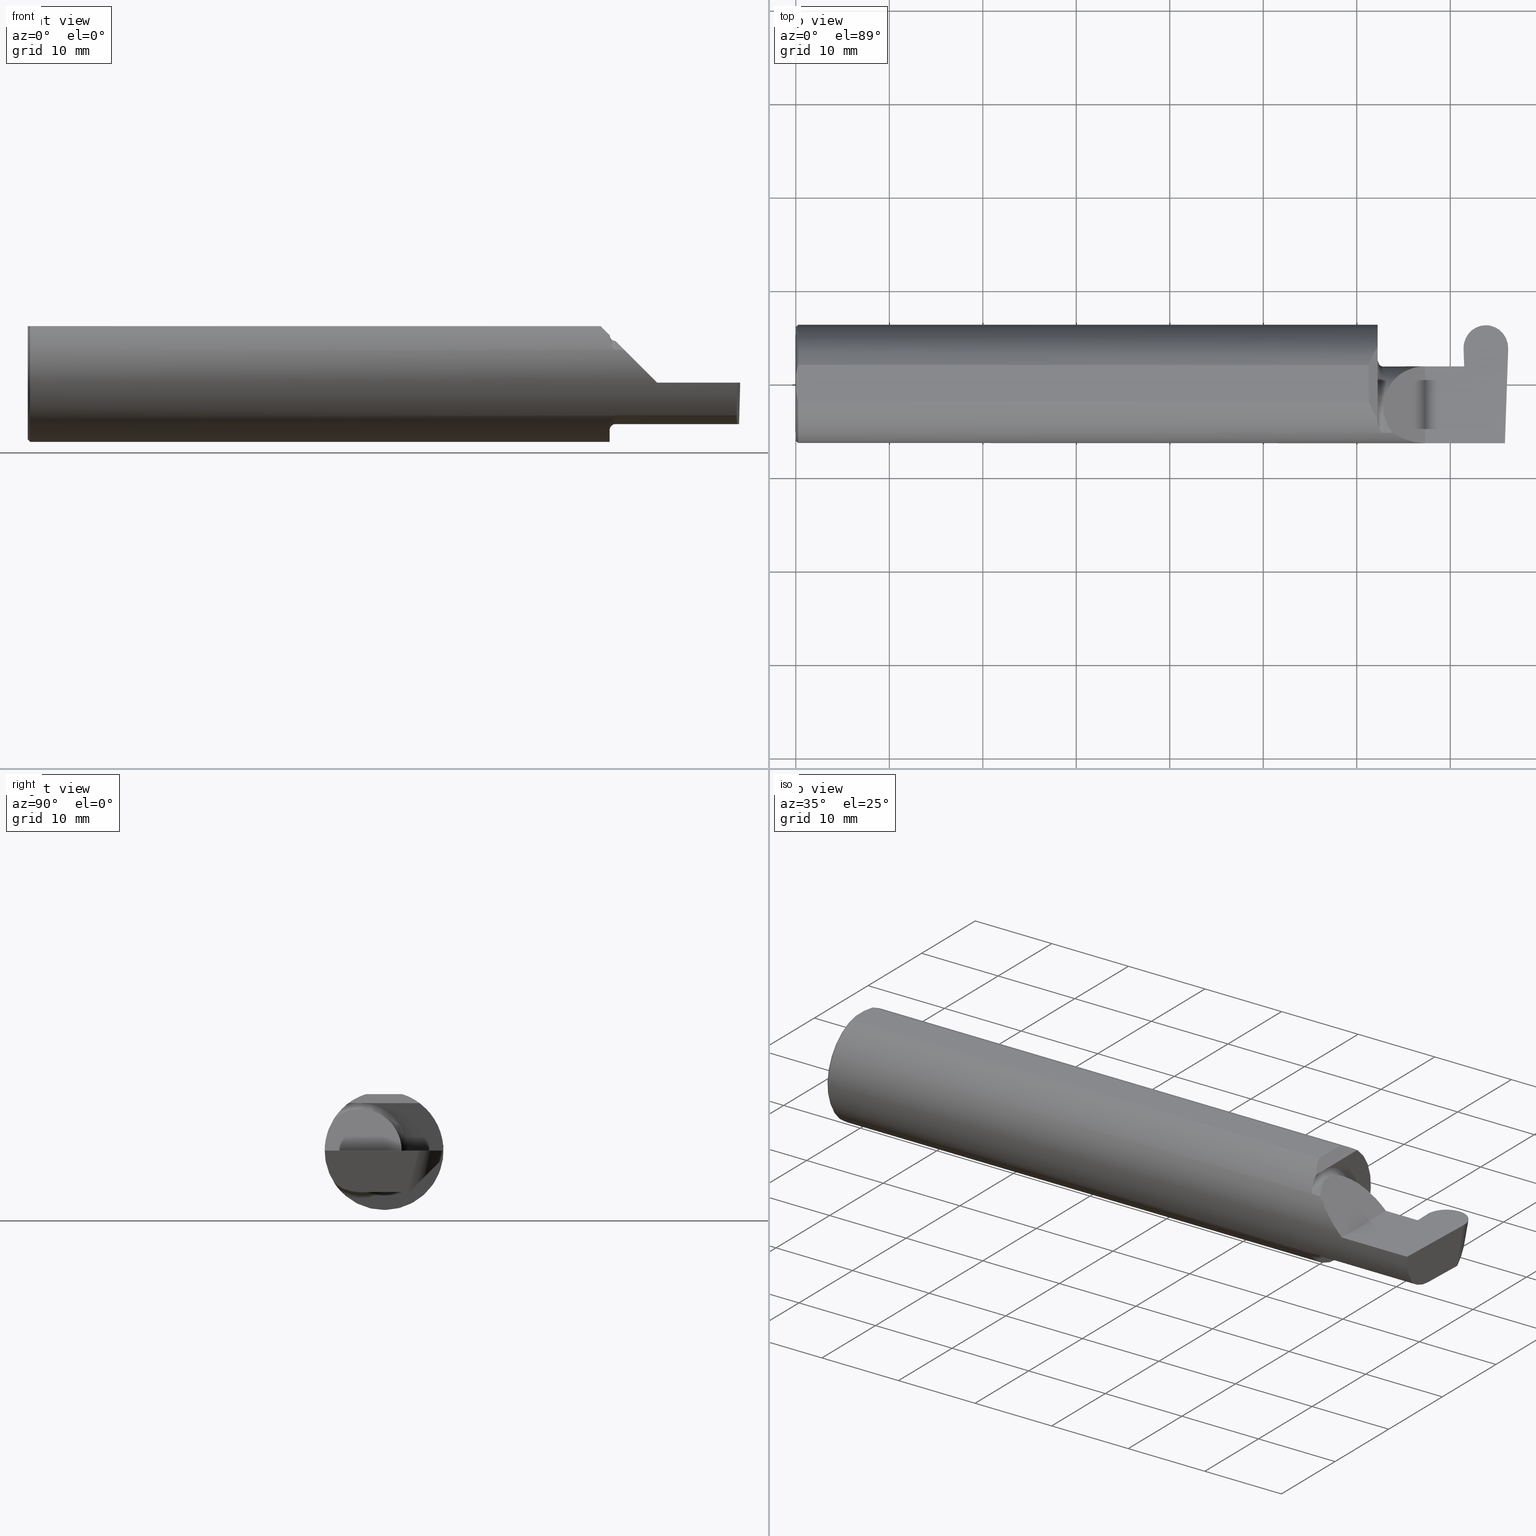
[diagram: canonical four-view strip — front | top / right | iso, engineering-drawing reading convention]
A machine part, canonical four-view strip (front | top / right | iso — engineering-drawing reading convention). The complete STEP part file that produces these views, byte-faithful:
ISO-10303-21;
HEADER;
FILE_DESCRIPTION (( 'STEP AP203' ),
    '1' );
FILE_NAME ('222515-GFR187-8.STEP',
    '2024-06-28T19:26:47',
    ( '' ),
    ( '' ),
    'SwSTEP 2.0',
    'SolidWorks 2024',
    '' );
FILE_SCHEMA (( 'CONFIG_CONTROL_DESIGN' ));
ENDSEC;

DATA;
#1 = CARTESIAN_POINT ( 'NONE',  ( 2.985694921565461790, -0.1771157075472505060, -0.1623092683844334361 ) ) ;
#2 = ORIENTED_EDGE ( 'NONE', *, *, #422, .F. ) ;
#3 = PERSON_AND_ORGANIZATION ( #633, #366 ) ;
#4 = CC_DESIGN_DATE_AND_TIME_ASSIGNMENT ( #162, #611, ( #522 ) ) ;
#5 = DIRECTION ( 'NONE',  ( 0.000000000000000000, 0.000000000000000000, 1.000000000000000000 ) ) ;
#6 = AXIS2_PLACEMENT_3D ( 'NONE', #295, #359, #610 ) ;
#7 =( GEOMETRIC_REPRESENTATION_CONTEXT ( 3 ) GLOBAL_UNCERTAINTY_ASSIGNED_CONTEXT ( ( #469 ) ) GLOBAL_UNIT_ASSIGNED_CONTEXT ( ( #30, #781, #265 ) ) REPRESENTATION_CONTEXT ( 'NONE', 'WORKASPACE' ) );
#8 = CARTESIAN_POINT ( 'NONE',  ( 2.467647060162628136, -0.2062109266231179350, 0.1410799729252293633 ) ) ;
#9 = CARTESIAN_POINT ( 'NONE',  ( 0.009999999999999927350, -0.07650098038587520299, 0.2378499999999998671 ) ) ;
#10 = EDGE_CURVE ( 'NONE', #46, #433, #202, .T. ) ;
#11 = CARTESIAN_POINT ( 'NONE',  ( 2.995232941068335375, 0.1039173297714280075, -0.1750000000000001277 ) ) ;
#12 = DIRECTION ( 'NONE',  ( 0.000000000000000000, 0.000000000000000000, -1.000000000000000000 ) ) ;
#13 = CARTESIAN_POINT ( 'NONE',  ( 2.650000000000000355, -0.2500000000000000555, 4.286263797015729199E-17 ) ) ;
#14 = CARTESIAN_POINT ( 'NONE',  ( 2.467611663768900510, -0.2061921161193829288, -0.1411075319999378908 ) ) ;
#15 = ORIENTED_EDGE ( 'NONE', *, *, #199, .T. ) ;
#16 = EDGE_CURVE ( 'NONE', #714, #628, #762, .T. ) ;
#17 = AXIS2_PLACEMENT_3D ( 'NONE', #639, #581, #645 ) ;
#18 = CARTESIAN_POINT ( 'NONE',  ( 2.412149999999998240, -0.2500000000000000555, 0.2378499999999998948 ) ) ;
#19 = VECTOR ( 'NONE', #697, 39.37007874015748143 ) ;
#20 = DIRECTION ( 'NONE',  ( 0.000000000000000000, -1.000000000000000000, 0.000000000000000000 ) ) ;
#21 = VERTEX_POINT ( 'NONE', #330 ) ;
#22 = LINE ( 'NONE', #18, #695 ) ;
#23 = CARTESIAN_POINT ( 'NONE',  ( 2.852310470236923301, 0.2343807619371273965, -0.04644357521104097719 ) ) ;
#24 = ORIENTED_EDGE ( 'NONE', *, *, #618, .F. ) ;
#25 = PLANE ( 'NONE',  #38 ) ;
#26 = FACE_OUTER_BOUND ( 'NONE', #795, .T. ) ;
#27 = ORIENTED_EDGE ( 'NONE', *, *, #691, .F. ) ;
#28 = CARTESIAN_POINT ( 'NONE',  ( 2.906528048425327970, 0.2471499999999999808, 0.000000000000000000 ) ) ;
#29 = VERTEX_POINT ( 'NONE', #550 ) ;
#30 =( CONVERSION_BASED_UNIT ( 'INCH', #36 ) LENGTH_UNIT ( ) NAMED_UNIT ( #477 ) );
#31 = DIRECTION ( 'NONE',  ( 1.000000000000000000, -0.000000000000000000, -0.000000000000000000 ) ) ;
#32 = ORIENTED_EDGE ( 'NONE', *, *, #311, .T. ) ;
#33 = DIRECTION ( 'NONE',  ( 0.000000000000000000, 0.000000000000000000, -1.000000000000000000 ) ) ;
#34 = ORIENTED_EDGE ( 'NONE', *, *, #495, .T. ) ;
#35 = EDGE_CURVE ( 'NONE', #568, #683, #511, .T. ) ;
#36 = LENGTH_MEASURE_WITH_UNIT ( LENGTH_MEASURE( 0.02539999999999999897 ), #647 );
#37 = ORIENTED_EDGE ( 'NONE', *, *, #658, .T. ) ;
#38 = AXIS2_PLACEMENT_3D ( 'NONE', #499, #554, #244 ) ;
#39 = EDGE_LOOP ( 'NONE', ( #356, #463, #259, #341 ) ) ;
#40 = FACE_OUTER_BOUND ( 'NONE', #497, .T. ) ;
#41 = CARTESIAN_POINT ( 'NONE',  ( 2.995153940549321714, 0.1001024549918554246, -0.1750000000000001277 ) ) ;
#42 = EDGE_LOOP ( 'NONE', ( #96, #161, #220, #254, #446, #98 ) ) ;
#43 = ORIENTED_EDGE ( 'NONE', *, *, #516, .F. ) ;
#44 = DIRECTION ( 'NONE',  ( 0.000000000000000000, 0.9659258262890682012, -0.2588190451025210725 ) ) ;
#45 = EDGE_CURVE ( 'NONE', #637, #474, #257, .T. ) ;
#46 = VERTEX_POINT ( 'NONE', #484 ) ;
#47 = EDGE_LOOP ( 'NONE', ( #587, #726, #686 ) ) ;
#48 = CC_DESIGN_PERSON_AND_ORGANIZATION_ASSIGNMENT ( #345, #737, ( #340 ) ) ;
#49 = CARTESIAN_POINT ( 'NONE',  ( 2.450000000000000178, -0.1616050818046600723, 0.1905487340154983222 ) ) ;
#50 = CARTESIAN_POINT ( 'NONE',  ( 2.985124127500504265, -0.2498499999999999610, -0.04956584089959709116 ) ) ;
#51 = AXIS2_PLACEMENT_3D ( 'NONE', #391, #394, #90 ) ;
#52 = ORIENTED_EDGE ( 'NONE', *, *, #544, .T. ) ;
#53 = PERSON_AND_ORGANIZATION ( #633, #366 ) ;
#54 = CARTESIAN_POINT ( 'NONE',  ( 2.450367168219774516, -0.1713400252854600514, 0.1819601557798509184 ) ) ;
#55 = CARTESIAN_POINT ( 'NONE',  ( 2.450000000000000178, -0.1497498664440164995, 0.1999999999999981792 ) ) ;
#56 = ORIENTED_EDGE ( 'NONE', *, *, #629, .T. ) ;
#57 = DATE_AND_TIME ( #351, #616 ) ;
#58 = CARTESIAN_POINT ( 'NONE',  ( 2.996006756888765832, 0.1814922884362611955, -0.09933204871190771945 ) ) ;
#59 = DIRECTION ( 'NONE',  ( 1.000000000000000000, 0.000000000000000000, 0.000000000000000000 ) ) ;
#60 = PERSON_AND_ORGANIZATION_ROLE ( 'design_supplier' ) ;
#61 = LINE ( 'NONE', #599, #88 ) ;
#62 = CARTESIAN_POINT ( 'NONE',  ( 2.412149999999998240, -0.07650098038587530014, 0.2378499999999998948 ) ) ;
#63 = EDGE_CURVE ( 'NONE', #769, #250, #377, .T. ) ;
#64 = AXIS2_PLACEMENT_3D ( 'NONE', #384, #567, #429 ) ;
#65 = DIRECTION ( 'NONE',  ( -3.304490794295083593E-16, 1.000000000000000000, 0.000000000000000000 ) ) ;
#66 = PLANE ( 'NONE',  #118 ) ;
#67 = CARTESIAN_POINT ( 'NONE',  ( 2.995191146414765360, 0.1058243371481696476, -0.1750000000000001277 ) ) ;
#68 = DIRECTION ( 'NONE',  ( -3.304490794295083593E-16, 1.000000000000000000, 0.000000000000000000 ) ) ;
#69 = EDGE_CURVE ( 'NONE', #705, #556, #596, .T. ) ;
#70 = ORIENTED_EDGE ( 'NONE', *, *, #311, .F. ) ;
#71 = EDGE_CURVE ( 'NONE', #748, #533, #106, .T. ) ;
#72 = DIRECTION ( 'NONE',  ( -0.000000000000000000, 1.223176342469858371E-16, 1.000000000000000000 ) ) ;
#73 = ORIENTED_EDGE ( 'NONE', *, *, #276, .T. ) ;
#74 = VECTOR ( 'NONE', #776, 39.37007874015748143 ) ;
#75 = FACE_OUTER_BOUND ( 'NONE', #512, .T. ) ;
#76 = CC_DESIGN_APPROVAL ( #704, ( #437 ) ) ;
#77 = ORIENTED_EDGE ( 'NONE', *, *, #383, .F. ) ;
#78 = CARTESIAN_POINT ( 'NONE',  ( 2.803339167728504666, 0.07414999999999977165, 0.000000000000000000 ) ) ;
#79 = EDGE_LOOP ( 'NONE', ( #77, #515, #441, #768, #275, #783, #538, #585, #389, #659, #100, #756, #696, #410, #70 ) ) ;
#80 = CARTESIAN_POINT ( 'NONE',  ( 2.450000000000000178, 0.000000000000000000, 0.000000000000000000 ) ) ;
#81 = DIRECTION ( 'NONE',  ( -0.03489949670249350294, 0.9993908270190959842, -0.000000000000000000 ) ) ;
#82 = ORIENTED_EDGE ( 'NONE', *, *, #10, .F. ) ;
#83 =( BOUNDED_CURVE ( )  B_SPLINE_CURVE ( 3, ( #261, #770, #644, #85 ),
 .UNSPECIFIED., .F., .T. ) 
 B_SPLINE_CURVE_WITH_KNOTS ( ( 4, 4 ),
 ( 4.712388980384689674, 5.298966915116348986 ),
 .UNSPECIFIED. ) 
 CURVE ( )  GEOMETRIC_REPRESENTATION_ITEM ( )  RATIONAL_B_SPLINE_CURVE ( ( 1.000000000000000000, 0.9715321379117536349, 0.9715321379117536349, 1.000000000000000000 ) ) 
 REPRESENTATION_ITEM ( '' )  );
#84 = ADVANCED_FACE ( 'NONE', ( #103 ), #673, .F. ) ;
#85 = CARTESIAN_POINT ( 'NONE',  ( 2.511704467739031887, -0.2080850024789288322, 0.1382955322609670801 ) ) ;
#86 = VECTOR ( 'NONE', #440, 39.37007874015748143 ) ;
#87 = CARTESIAN_POINT ( 'NONE',  ( 2.456147634408388125, -0.1932733126899458809, -0.1584637047788201025 ) ) ;
#88 = VECTOR ( 'NONE', #797, 39.37007874015748143 ) ;
#89 = VERTEX_POINT ( 'NONE', #291 ) ;
#90 = DIRECTION ( 'NONE',  ( 0.000000000000000000, -0.01745240643728358451, -0.9998476951563912696 ) ) ;
#91 = CARTESIAN_POINT ( 'NONE',  ( 2.803339167728504666, 0.07414999999999977165, 0.000000000000000000 ) ) ;
#92 = ORIENTED_EDGE ( 'NONE', *, *, #691, .T. ) ;
#93 = ADVANCED_FACE ( 'NONE', ( #412 ), #66, .F. ) ;
#94 = PLANE ( 'NONE',  #560 ) ;
#95 = CARTESIAN_POINT ( 'NONE',  ( 2.412149999999998240, 0.07650098038587530014, 0.2378499999999998948 ) ) ;
#96 = ORIENTED_EDGE ( 'NONE', *, *, #248, .F. ) ;
#97 = CARTESIAN_POINT ( 'NONE',  ( 2.985032866776429650, -0.2080850024789288044, -0.1382955322609669135 ) ) ;
#98 = ORIENTED_EDGE ( 'NONE', *, *, #467, .F. ) ;
#99 = LOCAL_TIME ( 12, 26, 47.00000000000000000, #282 ) ;
#100 = ORIENTED_EDGE ( 'NONE', *, *, #486, .T. ) ;
#101 = APPROVAL_STATUS ( 'not_yet_approved' ) ;
#102 = DIRECTION ( 'NONE',  ( 1.000000000000000000, 0.000000000000000000, 0.000000000000000000 ) ) ;
#103 = FACE_OUTER_BOUND ( 'NONE', #708, .T. ) ;
#104 = ORIENTED_EDGE ( 'NONE', *, *, #509, .T. ) ;
#105 = APPROVAL_STATUS ( 'not_yet_approved' ) ;
#106 = LINE ( 'NONE', #348, #535 ) ;
#107 = VECTOR ( 'NONE', #614, 39.37007874015748143 ) ;
#108 = ORIENTED_EDGE ( 'NONE', *, *, #580, .F. ) ;
#109 = CARTESIAN_POINT ( 'NONE',  ( 2.959374149763077000, 0.2343807619371279516, -0.04644357521104040820 ) ) ;
#110 = FACE_OUTER_BOUND ( 'NONE', #47, .T. ) ;
#111 = EDGE_CURVE ( 'NONE', #396, #430, #482, .T. ) ;
#112 = PERSON_AND_ORGANIZATION ( #633, #366 ) ;
#113 = DIRECTION ( 'NONE',  ( -0.03489949670249513358, -0.9993908270190959842, 0.000000000000000000 ) ) ;
#114 = EDGE_CURVE ( 'NONE', #705, #748, #681, .T. ) ;
#115 = DIRECTION ( 'NONE',  ( 0.9992386149554828290, 0.03489418134010620343, 0.01745240643728358451 ) ) ;
#116 = DIRECTION ( 'NONE',  ( -0.02590004391968260197, -0.2587322210431824421, -0.9656017944882975268 ) ) ;
#117 = CARTESIAN_POINT ( 'NONE',  ( 2.811836707554793424, 0.1469935636673020407, 0.000000000000000000 ) ) ;
#118 = AXIS2_PLACEMENT_3D ( 'NONE', #541, #115, #235 ) ;
#119 = CARTESIAN_POINT ( 'NONE',  ( -3.937007874019685528E-05, 0.2471499999999999808, 0.000000000000000000 ) ) ;
#120 = ADVANCED_FACE ( 'NONE', ( #168 ), #473, .T. ) ;
#121 = CARTESIAN_POINT ( 'NONE',  ( 2.475000000000000089, -0.2080850024789288322, -0.1382955322609670523 ) ) ;
#122 = VERTEX_POINT ( 'NONE', #354 ) ;
#123 = DIRECTION ( 'NONE',  ( 1.000000000000000000, -0.000000000000000000, -0.000000000000000000 ) ) ;
#124 = CYLINDRICAL_SURFACE ( 'NONE', #64, 0.09400000000000000022 ) ;
#125 = ORIENTED_EDGE ( 'NONE', *, *, #10, .T. ) ;
#126 = CARTESIAN_POINT ( 'NONE',  ( 2.412149999999998240, -0.07650098038587530014, 0.2378499999999998948 ) ) ;
#127 = LINE ( 'NONE', #375, #323 ) ;
#128 = ORIENTED_EDGE ( 'NONE', *, *, #276, .F. ) ;
#129 = CC_DESIGN_PERSON_AND_ORGANIZATION_ASSIGNMENT ( #112, #293, ( #522 ) ) ;
#130 = AXIS2_PLACEMENT_3D ( 'NONE', #454, #767, #201 ) ;
#131 = AXIS2_PLACEMENT_3D ( 'NONE', #423, #59, #12 ) ;
#132 = LINE ( 'NONE', #184, #256 ) ;
#133 = VECTOR ( 'NONE', #163, 39.37007874015748854 ) ;
#134 = CARTESIAN_POINT ( 'NONE',  ( 2.816530679450678587, 0.1001024549918555634, -0.1750000000000001277 ) ) ;
#135 = ORIENTED_EDGE ( 'NONE', *, *, #516, .T. ) ;
#136 = LINE ( 'NONE', #447, #746 ) ;
#137 = DIRECTION ( 'NONE',  ( 3.304490794295083593E-16, -1.000000000000000000, -3.304490794295049573E-16 ) ) ;
#138 = ADVANCED_FACE ( 'NONE', ( #110 ), #417, .T. ) ;
#139 = VERTEX_POINT ( 'NONE', #117 ) ;
#140 = DIRECTION ( 'NONE',  ( 0.000000000000000000, -1.000000000000000000, 1.223176342469858371E-16 ) ) ;
#141 = FACE_OUTER_BOUND ( 'NONE', #39, .T. ) ;
#142 = EDGE_LOOP ( 'NONE', ( #501, #215, #73 ) ) ;
#143 = DIRECTION ( 'NONE',  ( 0.7071067811865511255, 0.000000000000000000, -0.7071067811865439090 ) ) ;
#144 = DIRECTION ( 'NONE',  ( 1.000000000000000000, 0.000000000000000000, 0.000000000000000000 ) ) ;
#145 = EDGE_CURVE ( 'NONE', #637, #207, #773, .T. ) ;
#146 = AXIS2_PLACEMENT_3D ( 'NONE', #187, #177, #566 ) ;
#147 = CARTESIAN_POINT ( 'NONE',  ( 2.817597920595090955, -0.1010343856358522918, -0.1750000000000000722 ) ) ;
#148 = CARTESIAN_POINT ( 'NONE',  ( -3.937007874019685528E-05, 0.2348243371481683328, -0.04599999999999999922 ) ) ;
#149 = CARTESIAN_POINT ( 'NONE',  ( 2.650000000000000355, 0.07414999999999984104, 4.286263797015729199E-17 ) ) ;
#150 = ORIENTED_EDGE ( 'NONE', *, *, #111, .F. ) ;
#151 = DIRECTION ( 'NONE',  ( -0.7071067811865511255, 0.000000000000000000, 0.7071067811865439090 ) ) ;
#152 = CARTESIAN_POINT ( 'NONE',  ( 2.650000000000000355, 0.07414999999999984104, 4.286263797015729199E-17 ) ) ;
#153 = ORIENTED_EDGE ( 'NONE', *, *, #462, .T. ) ;
#154 = EDGE_LOOP ( 'NONE', ( #780, #526, #56, #621 ) ) ;
#155 = CARTESIAN_POINT ( 'NONE',  ( 0.000000000000000000, 0.000000000000000000, 0.000000000000000000 ) ) ;
#156 = EDGE_LOOP ( 'NONE', ( #52, #641, #664, #32, #761, #150 ) ) ;
#157 = ORIENTED_EDGE ( 'NONE', *, *, #788, .T. ) ;
#158 = APPROVAL_DATE_TIME ( #296, #503 ) ;
#159 = DIRECTION ( 'NONE',  ( -0.03489949670249350294, 0.9993908270190959842, -1.223270068893321771E-16 ) ) ;
#160 = CARTESIAN_POINT ( 'NONE',  ( 2.988136526189751230, -0.1008499999999992180, -0.1750000000000000722 ) ) ;
#161 = ORIENTED_EDGE ( 'NONE', *, *, #228, .F. ) ;
#162 = DATE_AND_TIME ( #734, #99 ) ;
#163 = DIRECTION ( 'NONE',  ( -0.01806954526206908107, 0.01744955702544859211, 0.9996844524616943506 ) ) ;
#164 = CARTESIAN_POINT ( 'NONE',  ( 0.005466242398876407227, 0.06169385855649833772, 0.2378499999999998671 ) ) ;
#165 = CARTESIAN_POINT ( 'NONE',  ( 0.000000000000000000, 0.000000000000000000, 0.000000000000000000 ) ) ;
#166 = CARTESIAN_POINT ( 'NONE',  ( 2.811818465794154509, 0.1471757923639232246, 0.0006800867543872113298 ) ) ;
#167 = EDGE_CURVE ( 'NONE', #479, #769, #169, .T. ) ;
#168 = FACE_OUTER_BOUND ( 'NONE', #525, .T. ) ;
#169 = CIRCLE ( 'NONE', #759, 0.1750000000000000444 ) ;
#170 = AXIS2_PLACEMENT_3D ( 'NONE', #313, #551, #370 ) ;
#171 = EDGE_CURVE ( 'NONE', #216, #430, #794, .T. ) ;
#172 = CARTESIAN_POINT ( 'NONE',  ( 2.456159563508733878, -0.1933019864360847606, 0.1584298865564834624 ) ) ;
#173 = CARTESIAN_POINT ( 'NONE',  ( 2.475000000000000089, -0.1008500000000001340, 0.000000000000000000 ) ) ;
#174 = CARTESIAN_POINT ( 'NONE',  ( 2.814380460850576249, 0.07414999999999977165, 9.645561665750316631E-21 ) ) ;
#175 = DIRECTION ( 'NONE',  ( 1.000000000000000000, 0.000000000000000000, -0.000000000000000000 ) ) ;
#176 = ADVANCED_FACE ( 'NONE', ( #564 ), #124, .T. ) ;
#177 = DIRECTION ( 'NONE',  ( -1.000000000000000000, -0.000000000000000000, -0.000000000000000000 ) ) ;
#178 = DIRECTION ( 'NONE',  ( -1.000000000000000000, -0.000000000000000000, -0.000000000000000000 ) ) ;
#179 = VERTEX_POINT ( 'NONE', #134 ) ;
#180 = VECTOR ( 'NONE', #123, 39.37007874015748143 ) ;
#181 = PLANE ( 'NONE',  #402 ) ;
#182 = CARTESIAN_POINT ( 'NONE',  ( 2.471700027347579542, -0.2077785947292765667, -0.1387580622202828629 ) ) ;
#183 = ORIENTED_EDGE ( 'NONE', *, *, #788, .F. ) ;
#184 = CARTESIAN_POINT ( 'NONE',  ( 2.450000000000000178, 0.07404339472834142732, -0.006107411922944308742 ) ) ;
#185 = LINE ( 'NONE', #317, #574 ) ;
#186 = ORIENTED_EDGE ( 'NONE', *, *, #16, .T. ) ;
#187 = CARTESIAN_POINT ( 'NONE',  ( 0.000000000000000000, 0.000000000000000000, 0.000000000000000000 ) ) ;
#188 = DIRECTION ( 'NONE',  ( -1.000000000000000000, -3.304490794295083593E-16, -0.000000000000000000 ) ) ;
#189 = ORIENTED_EDGE ( 'NONE', *, *, #579, .T. ) ;
#190 = CONICAL_SURFACE ( 'NONE', #130, 0.2398500000000001742, 0.7853981633974431720 ) ;
#191 = CC_DESIGN_APPROVAL ( #503, ( #522 ) ) ;
#192 = ADVANCED_FACE ( 'NONE', ( #26 ), #491, .T. ) ;
#193 = FACE_OUTER_BOUND ( 'NONE', #79, .T. ) ;
#194 = CARTESIAN_POINT ( 'NONE',  ( 2.905842309999999706, 0.2348220781727736184, -0.04600225897539471365 ) ) ;
#195 = ORIENTED_EDGE ( 'NONE', *, *, #71, .F. ) ;
#196 = FACE_OUTER_BOUND ( 'NONE', #343, .T. ) ;
#197 = LINE ( 'NONE', #329, #242 ) ;
#198 = ORIENTED_EDGE ( 'NONE', *, *, #260, .F. ) ;
#199 = EDGE_CURVE ( 'NONE', #281, #376, #279, .T. ) ;
#200 = DIRECTION ( 'NONE',  ( 0.000000000000000000, -0.9659258262890682012, 0.2588190451025209060 ) ) ;
#201 = DIRECTION ( 'NONE',  ( 0.000000000000000000, 0.000000000000000000, -1.000000000000000000 ) ) ;
#202 = LINE ( 'NONE', #147, #602 ) ;
#203 = CARTESIAN_POINT ( 'NONE',  ( 2.814490853840988738, 0.07404339472834124691, -0.006107411922953761250 ) ) ;
#204 = VECTOR ( 'NONE', #305, 39.37007874015748143 ) ;
#205 = CARTESIAN_POINT ( 'NONE',  ( 0.000000000000000000, 0.000000000000000000, -0.2398500000000001742 ) ) ;
#206 = AXIS2_PLACEMENT_3D ( 'NONE', #712, #200, #513 ) ;
#207 = VERTEX_POINT ( 'NONE', #253 ) ;
#208 = PLANE ( 'NONE',  #680 ) ;
#209 = CARTESIAN_POINT ( 'NONE',  ( 2.817543629401487948, 0.07109536363756167876, -0.1750000000000000722 ) ) ;
#210 = PRODUCT_RELATED_PRODUCT_CATEGORY ( 'detail', '', ( #582 ) ) ;
#211 = ORIENTED_EDGE ( 'NONE', *, *, #226, .T. ) ;
#212 = ORIENTED_EDGE ( 'NONE', *, *, #445, .F. ) ;
#213 = CARTESIAN_POINT ( 'NONE',  ( 2.475000000000000089, -0.1008500000000001895, 0.1749999999999984346 ) ) ;
#214 = CARTESIAN_POINT ( 'NONE',  ( 2.816464084461495876, 0.1020094859694684747, -0.1750000000000001277 ) ) ;
#215 = ORIENTED_EDGE ( 'NONE', *, *, #111, .T. ) ;
#216 = VERTEX_POINT ( 'NONE', #760 ) ;
#217 = DIRECTION ( 'NONE',  ( 1.000000000000000000, 0.000000000000000000, 0.000000000000000000 ) ) ;
#218 = EDGE_CURVE ( 'NONE', #350, #507, #623, .T. ) ;
#219 = CARTESIAN_POINT ( 'NONE',  ( 2.824252866266283135, -0.1210320425578226278, -0.1750000000000000722 ) ) ;
#220 = ORIENTED_EDGE ( 'NONE', *, *, #385, .T. ) ;
#221 = CIRCLE ( 'NONE', #170, 0.2398500000000001742 ) ;
#222 = ORIENTED_EDGE ( 'NONE', *, *, #658, .F. ) ;
#223 = LINE ( 'NONE', #174, #133 ) ;
#224 = DIRECTION ( 'NONE',  ( 0.000000000000000000, -1.000000000000000000, 0.000000000000000000 ) ) ;
#225 = PERSON_AND_ORGANIZATION ( #633, #366 ) ;
#226 = EDGE_CURVE ( 'NONE', #561, #590, #711, .T. ) ;
#227 = CARTESIAN_POINT ( 'NONE',  ( 2.452968662030529323, -0.1849684355203375097, 0.1680843977756270868 ) ) ;
#228 = EDGE_CURVE ( 'NONE', #122, #292, #380, .T. ) ;
#229 = ORIENTED_EDGE ( 'NONE', *, *, #69, .T. ) ;
#230 = DIRECTION ( 'NONE',  ( 0.000000000000000000, -1.000000000000000000, 0.000000000000000000 ) ) ;
#231 = CARTESIAN_POINT ( 'NONE',  ( 0.001983148254845710189, -0.04629825796642594860, 0.2378499999999998671 ) ) ;
#232 = VECTOR ( 'NONE', #159, 39.37007874015748854 ) ;
#233 = APPLICATION_PROTOCOL_DEFINITION ( 'international standard', 'config_control_design', 1994, #303 ) ;
#234 = DIRECTION ( 'NONE',  ( 1.000000000000000000, 3.304490794295083593E-16, 0.000000000000000000 ) ) ;
#235 = DIRECTION ( 'NONE',  ( -0.03489949670249350294, 0.9993908270190959842, 0.000000000000000000 ) ) ;
#236 = EDGE_CURVE ( 'NONE', #507, #139, #435, .T. ) ;
#237 = DIRECTION ( 'NONE',  ( 1.000000000000000000, 0.000000000000000000, 0.000000000000000000 ) ) ;
#238 = CARTESIAN_POINT ( 'NONE',  ( 2.999847912445206877, 0.1469935636673019297, 0.000000000000000000 ) ) ;
#239 = LINE ( 'NONE', #749, #107 ) ;
#240 = CARTESIAN_POINT ( 'NONE',  ( 2.905156571574672331, 0.2471499999999999808, 0.000000000000000000 ) ) ;
#241 = ORIENTED_EDGE ( 'NONE', *, *, #63, .F. ) ;
#242 = VECTOR ( 'NONE', #771, 39.37007874015748143 ) ;
#243 = AXIS2_PLACEMENT_3D ( 'NONE', #792, #116, #44 ) ;
#244 = DIRECTION ( 'NONE',  ( 0.01806679408117574034, 0.000000000000000000, -0.9998367821557817559 ) ) ;
#245 = CARTESIAN_POINT ( 'NONE',  ( 2.474999999999998757, -0.1400387324517231580, 0.1750000000000000444 ) ) ;
#246 = ORIENTED_EDGE ( 'NONE', *, *, #16, .F. ) ;
#247 = CARTESIAN_POINT ( 'NONE',  ( 2.803303632637951459, 0.07411446490944692544, -0.002035803974317937620 ) ) ;
#248 = EDGE_CURVE ( 'NONE', #292, #139, #443, .T. ) ;
#249 = CARTESIAN_POINT ( 'NONE',  ( 2.816493473585234053, 0.1058243371481696476, -0.1750000000000001277 ) ) ;
#250 = VERTEX_POINT ( 'NONE', #558 ) ;
#251 = EDGE_CURVE ( 'NONE', #430, #597, #679, .T. ) ;
#252 = CARTESIAN_POINT ( 'NONE',  ( 2.450000000000000178, -0.1616050818046600723, -0.1905487340154983222 ) ) ;
#253 = CARTESIAN_POINT ( 'NONE',  ( 0.009999999999999927350, 0.000000000000000000, -0.2498499999999999888 ) ) ;
#254 = ORIENTED_EDGE ( 'NONE', *, *, #226, .F. ) ;
#255 = CLOSED_SHELL ( 'NONE', ( #321, #777, #569, #84, #779, #409, #720, #347, #120, #492, #192, #640, #519, #138, #700, #703, #750, #93, #595, #609, #483, #176 ) ) ;
#256 = VECTOR ( 'NONE', #379, 39.37007874015748143 ) ;
#257 = B_SPLINE_CURVE_WITH_KNOTS ( 'NONE', 3,
 ( #9, #668, #231, #728 ),
 .UNSPECIFIED., .F., .F.,
 ( 4, 4 ),
 ( 0.01317593029100226111, 0.01435802289191457325 ),
 .UNSPECIFIED. ) ;
#258 = CARTESIAN_POINT ( 'NONE',  ( 2.433375685911487452, 0.1275470899297183325, 0.2166243140885106555 ) ) ;
#259 = ORIENTED_EDGE ( 'NONE', *, *, #145, .F. ) ;
#260 = EDGE_CURVE ( 'NONE', #89, #769, #286, .T. ) ;
#261 = CARTESIAN_POINT ( 'NONE',  ( 2.650000000000000355, -0.2498499999999999610, 4.286263797015729199E-17 ) ) ;
#262 = EDGE_CURVE ( 'NONE', #433, #334, #751, .T. ) ;
#263 = LINE ( 'NONE', #524, #74 ) ;
#264 = EDGE_LOOP ( 'NONE', ( #752, #790, #108, #373, #128 ) ) ;
#265 =( NAMED_UNIT ( * ) SI_UNIT ( $, .STERADIAN. ) SOLID_ANGLE_UNIT ( ) );
#266 = CARTESIAN_POINT ( 'NONE',  ( 2.814490853840988738, 0.07404339472834124691, -0.006107411922953761250 ) ) ;
#267 = ORIENTED_EDGE ( 'NONE', *, *, #383, .T. ) ;
#268 = FACE_OUTER_BOUND ( 'NONE', #578, .T. ) ;
#269 = VECTOR ( 'NONE', #661, 39.37007874015748854 ) ;
#270 = DIRECTION ( 'NONE',  ( -1.224646799147351975E-16, 0.000000000000000000, -1.000000000000000000 ) ) ;
#271 = APPROVAL_PERSON_ORGANIZATION ( #3, #503, #785 ) ;
#272 = ORIENTED_EDGE ( 'NONE', *, *, #114, .F. ) ;
#273 = DIRECTION ( 'NONE',  ( 0.000000000000000000, -0.7071067811865514585, 0.7071067811865435759 ) ) ;
#274 = CARTESIAN_POINT ( 'NONE',  ( 2.905842309999999706, 0.2402997171823329225, -0.02556560352174954212 ) ) ;
#275 = ORIENTED_EDGE ( 'NONE', *, *, #529, .F. ) ;
#276 = EDGE_CURVE ( 'NONE', #430, #568, #185, .T. ) ;
#277 = ORIENTED_EDGE ( 'NONE', *, *, #580, .T. ) ;
#278 = CARTESIAN_POINT ( 'NONE',  ( 2.475000000000000089, -0.1008500000000001340, 0.000000000000000000 ) ) ;
#279 =( BOUNDED_CURVE ( )  B_SPLINE_CURVE ( 3, ( #625, #572, #698, #506 ),
 .UNSPECIFIED., .F., .T. ) 
 B_SPLINE_CURVE_WITH_KNOTS ( ( 4, 4 ),
 ( 1.637964922114650168, 3.237953570749836807 ),
 .UNSPECIFIED. ) 
 CURVE ( )  GEOMETRIC_REPRESENTATION_ITEM ( )  RATIONAL_B_SPLINE_CURVE ( ( 1.000000000000000000, 0.7978071872141920817, 0.7978071872141920817, 1.000000000000000000 ) ) 
 REPRESENTATION_ITEM ( '' )  );
#280 = ORIENTED_EDGE ( 'NONE', *, *, #428, .F. ) ;
#281 = VERTEX_POINT ( 'NONE', #238 ) ;
#282 = COORDINATED_UNIVERSAL_TIME_OFFSET ( 8, 0, .BEHIND. ) ;
#283 = CARTESIAN_POINT ( 'NONE',  ( 2.473329956043142985, -0.2080850024798589215, 0.1382955322595678105 ) ) ;
#284 = CARTESIAN_POINT ( 'NONE',  ( 2.650000000000000355, -0.2500000000000000555, 4.286263797015729199E-17 ) ) ;
#285 = AXIS2_PLACEMENT_3D ( 'NONE', #742, #72, #140 ) ;
#286 =( BOUNDED_CURVE ( )  B_SPLINE_CURVE ( 3, ( #688, #555, #245, #425 ),
 .UNSPECIFIED., .F., .F. ) 
 B_SPLINE_CURVE_WITH_KNOTS ( ( 4, 4 ),
 ( 5.623622464215682903, 6.283185307179586232 ),
 .UNSPECIFIED. ) 
 CURVE ( )  GEOMETRIC_REPRESENTATION_ITEM ( )  RATIONAL_B_SPLINE_CURVE ( ( 1.000000000000000000, 0.9640754331822833922, 0.9640754331822833922, 1.000000000000000000 ) ) 
 REPRESENTATION_ITEM ( '' )  );
#287 = EDGE_CURVE ( 'NONE', #556, #46, #127, .T. ) ;
#288 = ORIENTED_EDGE ( 'NONE', *, *, #385, .F. ) ;
#289 = DATE_AND_TIME ( #360, #418 ) ;
#290 = CYLINDRICAL_SURFACE ( 'NONE', #243, 0.09399999999999998634 ) ;
#291 = CARTESIAN_POINT ( 'NONE',  ( 2.511704467739031887, -0.2080850024789288322, 0.1382955322609670801 ) ) ;
#292 = VERTEX_POINT ( 'NONE', #682 ) ;
#293 = PERSON_AND_ORGANIZATION_ROLE ( 'classification_officer' ) ;
#294 = DIRECTION ( 'NONE',  ( 0.000000000000000000, 1.000000000000000000, 0.000000000000000000 ) ) ;
#295 = CARTESIAN_POINT ( 'NONE',  ( 2.450000000000000178, -0.1008500000000001340, 0.000000000000000000 ) ) ;
#296 = DATE_AND_TIME ( #670, #575 ) ;
#297 = CARTESIAN_POINT ( 'NONE',  ( 2.464343523383979662, -0.2041337200786081107, 0.1440846171672515441 ) ) ;
#298 = CARTESIAN_POINT ( 'NONE',  ( 2.986768025497131607, -0.1400387324517225474, -0.1750000000000002387 ) ) ;
#299 =( BOUNDED_CURVE ( )  B_SPLINE_CURVE ( 3, ( #388, #656, #713, #149 ),
 .UNSPECIFIED., .F., .F. ) 
 B_SPLINE_CURVE_WITH_KNOTS ( ( 4, 4 ),
 ( 0.000000000000000000, 1.570796326794896780 ),
 .UNSPECIFIED. ) 
 CURVE ( )  GEOMETRIC_REPRESENTATION_ITEM ( )  RATIONAL_B_SPLINE_CURVE ( ( 1.000000000000000000, 0.8047378541243649375, 0.8047378541243649375, 1.000000000000000000 ) ) 
 REPRESENTATION_ITEM ( '' )  );
#300 = CC_DESIGN_PERSON_AND_ORGANIZATION_ASSIGNMENT ( #539, #796, ( #437 ) ) ;
#301 = CARTESIAN_POINT ( 'NONE',  ( 0.000000000000000000, -0.07650098038587520299, 0.2378499999999998671 ) ) ;
#302 = CARTESIAN_POINT ( 'NONE',  ( 0.002005502345409073024, 0.04647171987093980799, 0.2378499999999998671 ) ) ;
#303 = APPLICATION_CONTEXT ( 'configuration controlled 3d designs of mechanical parts and assemblies' ) ;
#304 = LINE ( 'NONE', #557, #451 ) ;
#305 = DIRECTION ( 'NONE',  ( 1.000000000000000000, -0.000000000000000000, -0.000000000000000000 ) ) ;
#306 = ORIENTED_EDGE ( 'NONE', *, *, #236, .T. ) ;
#307 = FACE_OUTER_BOUND ( 'NONE', #322, .T. ) ;
#308 = CARTESIAN_POINT ( 'NONE',  ( 2.848790630771113275, 0.2471500000000001473, 1.845438088445658575E-17 ) ) ;
#309 = ORIENTED_EDGE ( 'NONE', *, *, #228, .T. ) ;
#310 = AXIS2_PLACEMENT_3D ( 'NONE', #155, #144, #33 ) ;
#311 = EDGE_CURVE ( 'NONE', #250, #597, #690, .T. ) ;
#312 = LOCAL_TIME ( 12, 26, 47.00000000000000000, #719 ) ;
#313 = CARTESIAN_POINT ( 'NONE',  ( 0.000000000000000000, 0.000000000000000000, 0.000000000000000000 ) ) ;
#314 = CARTESIAN_POINT ( 'NONE',  ( 2.809800481473789358, 0.2053034494642216046, 2.322929703798115353E-17 ) ) ;
#315 = ORIENTED_EDGE ( 'NONE', *, *, #553, .T. ) ;
#316 = CARTESIAN_POINT ( 'NONE',  ( 0.009999999999999927350, -0.07650098038587520299, 0.2378499999999998671 ) ) ;
#317 = CARTESIAN_POINT ( 'NONE',  ( 2.450000000000000178, -0.2500000000000001665, 0.1999999999999981515 ) ) ;
#318 = VERTEX_POINT ( 'NONE', #95 ) ;
#319 = FACE_OUTER_BOUND ( 'NONE', #264, .T. ) ;
#320 = CARTESIAN_POINT ( 'NONE',  ( 2.811741978320692059, 0.1497062540083303195, 0.000000000000000000 ) ) ;
#321 = ADVANCED_FACE ( 'NONE', ( #141 ), #190, .T. ) ;
#322 = EDGE_LOOP ( 'NONE', ( #315, #699, #624, #37, #543, #594, #125 ) ) ;
#323 = VECTOR ( 'NONE', #178, 39.37007874015748143 ) ;
#324 = AXIS2_PLACEMENT_3D ( 'NONE', #764, #588, #517 ) ;
#325 = DIRECTION ( 'NONE',  ( 1.000000000000000000, 3.304490794295083593E-16, 0.000000000000000000 ) ) ;
#326 = PLANE ( 'NONE',  #450 ) ;
#327 = ORIENTED_EDGE ( 'NONE', *, *, #69, .F. ) ;
#328 = CARTESIAN_POINT ( 'NONE',  ( 2.904578287322759689, 0.2276725804969503275, -0.07269071918571426427 ) ) ;
#329 = CARTESIAN_POINT ( 'NONE',  ( 2.643342309999999973, -0.2080850024789289432, -0.1382955322609669135 ) ) ;
#330 = CARTESIAN_POINT ( 'NONE',  ( 2.803232562456845933, 0.07404339472834124691, -0.006107411922953809823 ) ) ;
#331 =( BOUNDED_CURVE ( )  B_SPLINE_CURVE ( 3, ( #675, #109, #58, #608 ),
 .UNSPECIFIED., .F., .T. ) 
 B_SPLINE_CURVE_WITH_KNOTS ( ( 4, 4 ),
 ( 3.132470120742353981, 4.667823590499109443 ),
 .UNSPECIFIED. ) 
 CURVE ( )  GEOMETRIC_REPRESENTATION_ITEM ( )  RATIONAL_B_SPLINE_CURVE ( ( 1.000000000000000000, 0.8130173582623190232, 0.8130173582623190232, 1.000000000000000000 ) ) 
 REPRESENTATION_ITEM ( '' )  );
#332 = CARTESIAN_POINT ( 'NONE',  ( 2.451385488563270432, -0.1808287530430323919, -0.1728790649396289847 ) ) ;
#333 = ORIENTED_EDGE ( 'NONE', *, *, #495, .F. ) ;
#334 = VERTEX_POINT ( 'NONE', #266 ) ;
#335 = CARTESIAN_POINT ( 'NONE',  ( 0.000000000000000000, 0.03090954545120574992, 0.2378499999999998671 ) ) ;
#336 = AXIS2_PLACEMENT_3D ( 'NONE', #613, #600, #741 ) ;
#337 = APPROVAL_PERSON_ORGANIZATION ( #665, #704, #401 ) ;
#338 = FACE_OUTER_BOUND ( 'NONE', #778, .T. ) ;
#339 = ORIENTED_EDGE ( 'NONE', *, *, #629, .F. ) ;
#340 = PRODUCT_DEFINITION ( 'UNKNOWN', '', #437, #663 ) ;
#341 = ORIENTED_EDGE ( 'NONE', *, *, #45, .T. ) ;
#342 = CARTESIAN_POINT ( 'NONE',  ( 2.816493473585234053, 0.1058243371481696476, -0.1750000000000001277 ) ) ;
#343 = EDGE_LOOP ( 'NONE', ( #399, #520, #436 ) ) ;
#344 = VERTEX_POINT ( 'NONE', #205 ) ;
#345 = PERSON_AND_ORGANIZATION ( #633, #366 ) ;
#346 = DIRECTION ( 'NONE',  ( -1.000000000000000000, -3.304490794295083593E-16, -0.000000000000000000 ) ) ;
#347 = ADVANCED_FACE ( 'NONE', ( #338 ), #709, .T. ) ;
#348 = CARTESIAN_POINT ( 'NONE',  ( 4.499279347985562423E-32, -0.2498499999999999610, 3.673940397442054938E-16 ) ) ;
#349 = MANIFOLD_SOLID_BREP ( 'Radii', #255 ) ;
#350 = VERTEX_POINT ( 'NONE', #91 ) ;
#351 = CALENDAR_DATE ( 2024, 28, 6 ) ;
#352 = CARTESIAN_POINT ( 'NONE',  ( 2.449999999999999734, -0.1665641037263005941, 0.1863429692936364734 ) ) ;
#353 = CIRCLE ( 'NONE', #17, 0.2398500000000001742 ) ;
#354 = CARTESIAN_POINT ( 'NONE',  ( 2.905842309999999706, 0.2402997171823329225, -0.02556560352174954212 ) ) ;
#355 = VECTOR ( 'NONE', #237, 39.37007874015748143 ) ;
#356 = ORIENTED_EDGE ( 'NONE', *, *, #397, .F. ) ;
#357 = APPROVAL_STATUS ( 'not_yet_approved' ) ;
#358 = CARTESIAN_POINT ( 'NONE',  ( 2.475000000000000089, -0.2080850024789288877, 0.1382955322609669691 ) ) ;
#359 = DIRECTION ( 'NONE',  ( -1.000000000000000000, -3.304490794295083593E-16, -0.000000000000000000 ) ) ;
#360 = CALENDAR_DATE ( 2024, 28, 6 ) ;
#361 = CARTESIAN_POINT ( 'NONE',  ( 2.999942641679308242, 0.1497062540083303195, 0.000000000000000000 ) ) ;
#362 = CARTESIAN_POINT ( 'NONE',  ( 2.420642670853159650, -0.1029056323555046087, 0.2293573291468382624 ) ) ;
#363 = CARTESIAN_POINT ( 'NONE',  ( 2.803268097547399140, 0.07407892981889409312, -0.004071607948635876106 ) ) ;
#364 = DIRECTION ( 'NONE',  ( -0.7071067811865439090, 0.000000000000000000, -0.7071067811865511255 ) ) ;
#365 = VECTOR ( 'NONE', #81, 39.37007874015748854 ) ;
#366 = ORGANIZATION ( 'UNSPECIFIED', 'UNSPECIFIED', '' ) ;
#367 = DIRECTION ( 'NONE',  ( -0.03489949670249512664, -0.9993908270190959842, 0.000000000000000000 ) ) ;
#368 = CARTESIAN_POINT ( 'NONE',  ( 2.473318040126429196, -0.2080850024789289709, -0.1382955322609668025 ) ) ;
#369 = ORIENTED_EDGE ( 'NONE', *, *, #606, .T. ) ;
#370 = DIRECTION ( 'NONE',  ( 0.000000000000000000, 0.000000000000000000, -1.000000000000000000 ) ) ;
#371 = CARTESIAN_POINT ( 'NONE',  ( 2.450000000000000178, 0.2498499999999999610, 0.000000000000000000 ) ) ;
#372 = EDGE_CURVE ( 'NONE', #318, #216, #798, .T. ) ;
#373 = ORIENTED_EDGE ( 'NONE', *, *, #35, .F. ) ;
#374 = LINE ( 'NONE', #301, #355 ) ;
#375 = CARTESIAN_POINT ( 'NONE',  ( 3.402190948718819996, -0.1008499999999992180, -0.1750000000000000722 ) ) ;
#376 = VERTEX_POINT ( 'NONE', #28 ) ;
#377 = CIRCLE ( 'NONE', #653, 0.1750000000000000444 ) ;
#378 = AXIS2_PLACEMENT_3D ( 'NONE', #604, #346, #230 ) ;
#379 = DIRECTION ( 'NONE',  ( -1.000000000000000000, -3.304490794295083593E-16, -0.000000000000000000 ) ) ;
#380 = LINE ( 'NONE', #744, #508 ) ;
#381 = EDGE_LOOP ( 'NONE', ( #267, #241, #400, #772, #339, #24, #649, #689, #327 ) ) ;
#382 =( BOUNDED_CURVE ( )  B_SPLINE_CURVE ( 3, ( #274, #702, #721, #392 ),
 .UNSPECIFIED., .F., .F. ) 
 B_SPLINE_CURVE_WITH_KNOTS ( ( 4, 4 ),
 ( 4.712388980384694115, 4.718218730468869637 ),
 .UNSPECIFIED. ) 
 CURVE ( )  GEOMETRIC_REPRESENTATION_ITEM ( )  RATIONAL_B_SPLINE_CURVE ( ( 1.000000000000000000, 0.9999971678365016103, 0.9999971678365016103, 1.000000000000000000 ) ) 
 REPRESENTATION_ITEM ( '' )  );
#383 = EDGE_CURVE ( 'NONE', #705, #250, #197, .T. ) ;
#384 = CARTESIAN_POINT ( 'NONE',  ( 2.905746895599969459, 0.1504558454098932074, 0.002320612959491866276 ) ) ;
#385 = EDGE_CURVE ( 'NONE', #122, #590, #382, .T. ) ;
#386 = ORIENTED_EDGE ( 'NONE', *, *, #486, .F. ) ;
#387 = DIRECTION ( 'NONE',  ( -0.7071067811865439090, 0.000000000000000000, -0.7071067811865511255 ) ) ;
#388 = CARTESIAN_POINT ( 'NONE',  ( 2.475000000000000089, -0.1008500000000001895, 0.1749999999999984346 ) ) ;
#389 = ORIENTED_EDGE ( 'NONE', *, *, #667, .F. ) ;
#390 = CIRCLE ( 'NONE', #694, 0.2498499999999999888 ) ;
#391 = CARTESIAN_POINT ( 'NONE',  ( 2.814380460850576249, 0.07414999999999977165, 0.000000000000000000 ) ) ;
#392 = CARTESIAN_POINT ( 'NONE',  ( 2.905842309999999706, 0.2348220781727736184, -0.04600225897539471365 ) ) ;
#393 = DIRECTION ( 'NONE',  ( -0.0003154085283454421984, 0.9999999502587288980, -1.223178646569383438E-16 ) ) ;
#394 = DIRECTION ( 'NONE',  ( 0.000000000000000000, -0.9998476951563912696, 0.01745240643728358451 ) ) ;
#395 = CARTESIAN_POINT ( 'NONE',  ( 3.000000000000000444, -0.2500000000000000555, 0.000000000000000000 ) ) ;
#396 = VERTEX_POINT ( 'NONE', #403 ) ;
#397 = EDGE_CURVE ( 'NONE', #344, #474, #353, .T. ) ;
#398 = DIRECTION ( 'NONE',  ( -0.000000000000000000, 1.000000000000000000, -0.000000000000000000 ) ) ;
#399 = ORIENTED_EDGE ( 'NONE', *, *, #445, .T. ) ;
#400 = ORIENTED_EDGE ( 'NONE', *, *, #406, .T. ) ;
#401 = APPROVAL_ROLE ( '' ) ;
#402 = AXIS2_PLACEMENT_3D ( 'NONE', #434, #745, #367 ) ;
#403 = CARTESIAN_POINT ( 'NONE',  ( 2.450000000000000178, -0.1616050818046600723, 0.1905487340154983222 ) ) ;
#404 = VERTEX_POINT ( 'NONE', #152 ) ;
#405 = MECHANICAL_CONTEXT ( 'NONE', #757, 'mechanical' ) ;
#406 = EDGE_CURVE ( 'NONE', #769, #404, #299, .T. ) ;
#407 = CARTESIAN_POINT ( 'NONE',  ( 2.988136526189751230, -0.1008499999999992180, -0.1750000000000000722 ) ) ;
#408 = DIRECTION ( 'NONE',  ( -1.000000000000000000, -0.000000000000000000, -0.000000000000000000 ) ) ;
#409 = ADVANCED_FACE ( 'NONE', ( #518 ), #326, .F. ) ;
#410 = ORIENTED_EDGE ( 'NONE', *, *, #509, .F. ) ;
#411 = LINE ( 'NONE', #735, #626 ) ;
#412 = FACE_OUTER_BOUND ( 'NONE', #657, .T. ) ;
#413 = ORIENTED_EDGE ( 'NONE', *, *, #171, .T. ) ;
#414 = DATE_TIME_ROLE ( 'creation_date' ) ;
#415 = LINE ( 'NONE', #166, #269 ) ;
#416 = VECTOR ( 'NONE', #31, 39.37007874015748143 ) ;
#417 = CYLINDRICAL_SURFACE ( 'NONE', #6, 0.1750000000000000444 ) ;
#418 = LOCAL_TIME ( 12, 26, 47.00000000000000000, #674 ) ;
#419 = SECURITY_CLASSIFICATION_LEVEL ( 'unclassified' ) ;
#420 = DIRECTION ( 'NONE',  ( 3.304490794295083593E-16, -1.000000000000000000, 0.000000000000000000 ) ) ;
#421 = DIRECTION ( 'NONE',  ( 0.000000000000000000, 0.000000000000000000, -1.000000000000000000 ) ) ;
#422 = EDGE_CURVE ( 'NONE', #561, #29, #528, .T. ) ;
#423 = CARTESIAN_POINT ( 'NONE',  ( 0.009999999999999927350, 0.000000000000000000, 0.000000000000000000 ) ) ;
#424 = CARTESIAN_POINT ( 'NONE',  ( 2.905842309999999706, 0.2348220781727736184, -0.04600225897539471365 ) ) ;
#425 = CARTESIAN_POINT ( 'NONE',  ( 2.475000000000000089, -0.1008500000000001895, 0.1749999999999984346 ) ) ;
#426 = EDGE_LOOP ( 'NONE', ( #27, #787, #530, #470, #607, #669, #195, #333, #15 ) ) ;
#427 = CARTESIAN_POINT ( 'NONE',  ( 2.803232562456845933, 0.07404339472834124691, -0.006107411922953809823 ) ) ;
#428 = EDGE_CURVE ( 'NONE', #461, #556, #263, .T. ) ;
#429 = DIRECTION ( 'NONE',  ( 0.000000000000000000, 0.9659258262890682012, -0.2588190451025210170 ) ) ;
#430 = VERTEX_POINT ( 'NONE', #514 ) ;
#431 = FACE_OUTER_BOUND ( 'NONE', #142, .T. ) ;
#432 = DIRECTION ( 'NONE',  ( 1.000000000000000000, 3.304490794295083593E-16, 0.000000000000000000 ) ) ;
#433 = VERTEX_POINT ( 'NONE', #209 ) ;
#434 = CARTESIAN_POINT ( 'NONE',  ( 2.999942641679308242, 0.1497062540083303195, 0.000000000000000000 ) ) ;
#435 = LINE ( 'NONE', #320, #365 ) ;
#436 = ORIENTED_EDGE ( 'NONE', *, *, #397, .T. ) ;
#437 = PRODUCT_DEFINITION_FORMATION_WITH_SPECIFIED_SOURCE ( 'ANY', '', #582, .NOT_KNOWN. ) ;
#438 = DIRECTION ( 'NONE',  ( 0.02590004391968260197, 0.2587322210431824421, 0.9656017944882975268 ) ) ;
#439 =( BOUNDED_CURVE ( )  B_SPLINE_CURVE ( 3, ( #67, #11, #493, #684 ),
 .UNSPECIFIED., .F., .T. ) 
 B_SPLINE_CURVE_WITH_KNOTS ( ( 4, 4 ),
 ( 4.586414956270678189, 4.645220385064935620 ),
 .UNSPECIFIED. ) 
 CURVE ( )  GEOMETRIC_REPRESENTATION_ITEM ( )  RATIONAL_B_SPLINE_CURVE ( ( 1.000000000000000000, 0.9997118475557109640, 0.9997118475557109640, 1.000000000000000000 ) ) 
 REPRESENTATION_ITEM ( '' )  );
#440 = DIRECTION ( 'NONE',  ( 3.304490794295083593E-16, -1.000000000000000000, -3.304490794295049573E-16 ) ) ;
#441 = ORIENTED_EDGE ( 'NONE', *, *, #71, .T. ) ;
#442 = LINE ( 'NONE', #328, #496 ) ;
#443 =( BOUNDED_CURVE ( )  B_SPLINE_CURVE ( 3, ( #240, #308, #314, #631 ),
 .UNSPECIFIED., .F., .T. ) 
 B_SPLINE_CURVE_WITH_KNOTS ( ( 4, 4 ),
 ( 3.045231736429744540, 4.645220385064936508 ),
 .UNSPECIFIED. ) 
 CURVE ( )  GEOMETRIC_REPRESENTATION_ITEM ( )  RATIONAL_B_SPLINE_CURVE ( ( 1.000000000000000000, 0.7978071872141907495, 0.7978071872141907495, 1.000000000000000000 ) ) 
 REPRESENTATION_ITEM ( '' )  );
#444 = CARTESIAN_POINT ( 'NONE',  ( 2.450000000000000178, -0.1616050818046600723, -0.1905487340154983222 ) ) ;
#445 = EDGE_CURVE ( 'NONE', #474, #714, #457, .T. ) ;
#446 = ORIENTED_EDGE ( 'NONE', *, *, #455, .F. ) ;
#447 = CARTESIAN_POINT ( 'NONE',  ( 0.000000000000000000, 0.000000000000000000, -0.2398500000000001742 ) ) ;
#448 = CARTESIAN_POINT ( 'NONE',  ( 2.420642670853159650, 0.1029056323555044561, 0.2293573291468383457 ) ) ;
#449 = ORIENTED_EDGE ( 'NONE', *, *, #667, .T. ) ;
#450 = AXIS2_PLACEMENT_3D ( 'NONE', #395, #270, #577 ) ;
#451 = VECTOR ( 'NONE', #438, 39.37007874015748854 ) ;
#452 = PRODUCT_DEFINITION_SHAPE ( 'NONE', 'NONE',  #340 ) ;
#453 = FACE_OUTER_BOUND ( 'NONE', #154, .T. ) ;
#454 = CARTESIAN_POINT ( 'NONE',  ( 0.000000000000000000, 0.000000000000000000, 0.000000000000000000 ) ) ;
#455 = EDGE_CURVE ( 'NONE', #179, #561, #498, .T. ) ;
#456 = ORIENTED_EDGE ( 'NONE', *, *, #743, .F. ) ;
#457 = LINE ( 'NONE', #716, #521 ) ;
#458 = ORIENTED_EDGE ( 'NONE', *, *, #251, .T. ) ;
#459 = ORIENTED_EDGE ( 'NONE', *, *, #553, .F. ) ;
#460 = CARTESIAN_POINT ( 'NONE',  ( 2.816451678931664482, 0.1039173297714280075, -0.1750000000000001277 ) ) ;
#461 = VERTEX_POINT ( 'NONE', #41 ) ;
#462 = EDGE_CURVE ( 'NONE', #318, #628, #411, .T. ) ;
#463 = ORIENTED_EDGE ( 'NONE', *, *, #743, .T. ) ;
#464 = CALENDAR_DATE ( 2024, 28, 6 ) ;
#465 = APPROVAL_PERSON_ORGANIZATION ( #53, #571, #475 ) ;
#466 = CYLINDRICAL_SURFACE ( 'NONE', #378, 0.1750000000000000444 ) ;
#467 = EDGE_CURVE ( 'NONE', #139, #179, #415, .T. ) ;
#468 = CARTESIAN_POINT ( 'NONE',  ( 2.433375685911487452, -0.1275470899297185268, 0.2166243140885105445 ) ) ;
#469 = UNCERTAINTY_MEASURE_WITH_UNIT (LENGTH_MEASURE( 1.000000000000000082E-05 ), #30, 'distance_accuracy_value', 'NONE');
#470 = ORIENTED_EDGE ( 'NONE', *, *, #218, .F. ) ;
#471 = DATE_AND_TIME ( #464, #312 ) ;
#472 = DIRECTION ( 'NONE',  ( -1.000000000000000000, -3.304490794295083593E-16, -0.000000000000000000 ) ) ;
#473 = PLANE ( 'NONE',  #724 ) ;
#474 = VERTEX_POINT ( 'NONE', #666 ) ;
#475 = APPROVAL_ROLE ( '' ) ;
#476 = FACE_OUTER_BOUND ( 'NONE', #381, .T. ) ;
#477 = DIMENSIONAL_EXPONENTS ( 1.000000000000000000, 0.000000000000000000, 0.000000000000000000, 0.000000000000000000, 0.000000000000000000, 0.000000000000000000, 0.000000000000000000 ) ;
#478 = CARTESIAN_POINT ( 'NONE',  ( 2.985032866776429650, -0.2080850024789288044, -0.1382955322609669135 ) ) ;
#479 = VERTEX_POINT ( 'NONE', #358 ) ;
#480 = PERSON_AND_ORGANIZATION_ROLE ( 'design_owner' ) ;
#481 = CARTESIAN_POINT ( 'NONE',  ( 2.650000000000000355, -0.2498499999999999610, 4.286263797015729199E-17 ) ) ;
#482 = CIRCLE ( 'NONE', #336, 0.2000000000000001221 ) ;
#483 = ADVANCED_FACE ( 'NONE', ( #672 ), #290, .T. ) ;
#484 = CARTESIAN_POINT ( 'NONE',  ( 2.817597862438286249, -0.1008500000000000368, -0.1750000000000000444 ) ) ;
#485 = AXIS2_PLACEMENT_3D ( 'NONE', #505, #563, #65 ) ;
#486 = EDGE_CURVE ( 'NONE', #207, #628, #710, .T. ) ;
#487 = EDGE_CURVE ( 'NONE', #334, #507, #223, .T. ) ;
#488 = LINE ( 'NONE', #219, #232 ) ;
#489 = CARTESIAN_POINT ( 'NONE',  ( 2.984795792828450978, -0.2355204011147991605, -0.09701513151466779894 ) ) ;
#490 = DIRECTION ( 'NONE',  ( 0.000000000000000000, 1.000000000000000000, 0.000000000000000000 ) ) ;
#491 = PLANE ( 'NONE',  #548 ) ;
#492 = ADVANCED_FACE ( 'NONE', ( #540 ), #725, .F. ) ;
#493 = CARTESIAN_POINT ( 'NONE',  ( 2.995220535538503981, 0.1020094859694684192, -0.1750000000000001277 ) ) ;
#494 = CARTESIAN_POINT ( 'NONE',  ( 2.464302603425053029, -0.2041009206016212163, -0.1441313430770041204 ) ) ;
#495 = EDGE_CURVE ( 'NONE', #281, #748, #740, .T. ) ;
#496 = VECTOR ( 'NONE', #701, 39.37007874015747433 ) ;
#497 = EDGE_LOOP ( 'NONE', ( #157, #309, #92 ) ) ;
#498 =( BOUNDED_CURVE ( )  B_SPLINE_CURVE ( 3, ( #782, #214, #460, #342 ),
 .UNSPECIFIED., .F., .F. ) 
 B_SPLINE_CURVE_WITH_KNOTS ( ( 4, 4 ),
 ( 1.637964922114649946, 1.696770350908906488 ),
 .UNSPECIFIED. ) 
 CURVE ( )  GEOMETRIC_REPRESENTATION_ITEM ( )  RATIONAL_B_SPLINE_CURVE ( ( 1.000000000000000000, 0.9997118475557110751, 0.9997118475557110751, 1.000000000000000000 ) ) 
 REPRESENTATION_ITEM ( '' )  );
#499 = CARTESIAN_POINT ( 'NONE',  ( 2.818543965966616494, -2.751416465448401016, -0.1810926276730670248 ) ) ;
#500 = CARTESIAN_POINT ( 'NONE',  ( 2.814380460850576249, 0.07414999999999977165, 9.645561665750316631E-21 ) ) ;
#501 = ORIENTED_EDGE ( 'NONE', *, *, #763, .T. ) ;
#502 = LINE ( 'NONE', #119, #180 ) ;
#503 = APPROVAL ( #357, 'UNSPECIFIED' ) ;
#504 = ORIENTED_EDGE ( 'NONE', *, *, #765, .T. ) ;
#505 = CARTESIAN_POINT ( 'NONE',  ( 2.450000000000000178, 0.2498499999999999610, 0.000000000000000000 ) ) ;
#506 = CARTESIAN_POINT ( 'NONE',  ( 2.906528048425327970, 0.2471499999999999808, 0.000000000000000000 ) ) ;
#507 = VERTEX_POINT ( 'NONE', #732 ) ;
#508 = VECTOR ( 'NONE', #754, 39.37007874015748854 ) ;
#509 = EDGE_CURVE ( 'NONE', #597, #216, #738, .T. ) ;
#510 = CARTESIAN_POINT ( 'NONE',  ( 2.450000000000000622, -0.1716188362992551175, -0.1820560320165483525 ) ) ;
#511 =( BOUNDED_CURVE ( )  B_SPLINE_CURVE ( 3, ( #55, #468, #362, #62 ),
 .UNSPECIFIED., .F., .T. ) 
 B_SPLINE_CURVE_WITH_KNOTS ( ( 4, 4 ),
 ( 5.640485106395822790, 5.971999575172441510 ),
 .UNSPECIFIED. ) 
 CURVE ( )  GEOMETRIC_REPRESENTATION_ITEM ( )  RATIONAL_B_SPLINE_CURVE ( ( 1.000000000000000000, 0.9908624633578575480, 0.9908624633578575480, 1.000000000000000000 ) ) 
 REPRESENTATION_ITEM ( '' )  );
#512 = EDGE_LOOP ( 'NONE', ( #504, #655, #82 ) ) ;
#513 = DIRECTION ( 'NONE',  ( 0.000000000000000000, -0.2588190451025209060, -0.9659258262890682012 ) ) ;
#514 = CARTESIAN_POINT ( 'NONE',  ( 2.450000000000000178, -0.1008500000000002034, 0.1999999999999981792 ) ) ;
#515 = ORIENTED_EDGE ( 'NONE', *, *, #114, .T. ) ;
#516 = EDGE_CURVE ( 'NONE', #590, #29, #331, .T. ) ;
#517 = DIRECTION ( 'NONE',  ( 0.000000000000000000, 0.000000000000000000, -1.000000000000000000 ) ) ;
#518 = FACE_OUTER_BOUND ( 'NONE', #426, .T. ) ;
#519 = ADVANCED_FACE ( 'NONE', ( #476 ), #466, .T. ) ;
#520 = ORIENTED_EDGE ( 'NONE', *, *, #615, .T. ) ;
#521 = VECTOR ( 'NONE', #398, 39.37007874015748143 ) ;
#522 = SECURITY_CLASSIFICATION ( '', '', #419 ) ;
#523 = CARTESIAN_POINT ( 'NONE',  ( 2.817597862438286249, -0.1008500000000000368, -0.1750000000000000444 ) ) ;
#524 = CARTESIAN_POINT ( 'NONE',  ( 2.988640834071240260, -0.08640851177310765463, -0.1750000000000000722 ) ) ;
#525 = EDGE_LOOP ( 'NONE', ( #449, #277, #153, #246, #212, #565 ) ) ;
#526 = ORIENTED_EDGE ( 'NONE', *, *, #618, .T. ) ;
#527 = DIRECTION ( 'NONE',  ( 0.000000000000000000, -0.7071067811865435759, -0.7071067811865514585 ) ) ;
#528 = LINE ( 'NONE', #651, #416 ) ;
#529 = EDGE_CURVE ( 'NONE', #479, #89, #61, .T. ) ;
#530 = ORIENTED_EDGE ( 'NONE', *, *, #236, .F. ) ;
#531 = APPROVAL_DATE_TIME ( #57, #704 ) ;
#532 = CARTESIAN_POINT ( 'NONE',  ( 2.471718393013769610, -0.2077830475237241181, 0.1387513848711939279 ) ) ;
#533 = VERTEX_POINT ( 'NONE', #481 ) ;
#534 = COORDINATED_UNIVERSAL_TIME_OFFSET ( 8, 0, .BEHIND. ) ;
#535 = VECTOR ( 'NONE', #408, 39.37007874015748143 ) ;
#536 = CARTESIAN_POINT ( 'NONE',  ( 2.816493473585234053, 0.1058243371481696476, -0.1750000000000001277 ) ) ;
#537 = DIRECTION ( 'NONE',  ( 0.000000000000000000, -1.000000000000000000, 0.000000000000000000 ) ) ;
#538 = ORIENTED_EDGE ( 'NONE', *, *, #763, .F. ) ;
#539 = PERSON_AND_ORGANIZATION ( #633, #366 ) ;
#540 = FACE_OUTER_BOUND ( 'NONE', #156, .T. ) ;
#541 = CARTESIAN_POINT ( 'NONE',  ( 2.811741978320692059, 0.1497062540083303195, 0.000000000000000000 ) ) ;
#542 = B_SPLINE_CURVE_WITH_KNOTS ( 'NONE', 3,
 ( #49, #352, #54, #545, #227, #172, #612, #677, #297, #8, #593, #532, #283, #786 ),
 .UNSPECIFIED., .F., .F.,
 ( 4, 2, 2, 2, 2, 2, 4 ),
 ( 0.0003834465838148106917, 0.0008781406165086604390, 0.001372834649202510186, 0.001867528681896359717, 0.002114875698243289144, 0.002238549206416754183, 0.002362222714590218788 ),
 .UNSPECIFIED. ) ;
#543 = ORIENTED_EDGE ( 'NONE', *, *, #428, .T. ) ;
#544 = EDGE_CURVE ( 'NONE', #396, #479, #542, .T. ) ;
#545 = CARTESIAN_POINT ( 'NONE',  ( 2.451849548162864600, -0.1805300287242671831, 0.1728462070311783672 ) ) ;
#546 = DIRECTION ( 'NONE',  ( -1.000000000000000000, -3.304490794295083593E-16, -0.000000000000000000 ) ) ;
#547 = PERSON_AND_ORGANIZATION ( #633, #366 ) ;
#548 = AXIS2_PLACEMENT_3D ( 'NONE', #371, #432, #68 ) ;
#549 = CARTESIAN_POINT ( 'NONE',  ( 2.450000000000000178, 0.000000000000000000, 0.000000000000000000 ) ) ;
#550 = CARTESIAN_POINT ( 'NONE',  ( 2.995191146414765360, 0.1058243371481696476, -0.1750000000000001277 ) ) ;
#551 = DIRECTION ( 'NONE',  ( -1.000000000000000000, -0.000000000000000000, -0.000000000000000000 ) ) ;
#552 = CARTESIAN_POINT ( 'NONE',  ( 2.985032866776429650, -0.2080850024789288044, -0.1382955322609669135 ) ) ;
#553 = EDGE_CURVE ( 'NONE', #433, #179, #488, .T. ) ;
#554 = DIRECTION ( 'NONE',  ( 0.9998367324388628408, 0.0003153570480505199936, 0.01806679318280377325 ) ) ;
#555 = CARTESIAN_POINT ( 'NONE',  ( 2.487690731615565642, -0.1771157075472508391, 0.1623092683844332140 ) ) ;
#556 = VERTEX_POINT ( 'NONE', #407 ) ;
#557 = CARTESIAN_POINT ( 'NONE',  ( 2.999866154205845792, 0.1471757923639230858, 0.0006800867543872491684 ) ) ;
#558 = CARTESIAN_POINT ( 'NONE',  ( 2.475000000000000089, -0.2080850024789288322, -0.1382955322609670523 ) ) ;
#559 = AXIS2_PLACEMENT_3D ( 'NONE', #284, #364, #676 ) ;
#560 = AXIS2_PLACEMENT_3D ( 'NONE', #570, #387, #151 ) ;
#561 = VERTEX_POINT ( 'NONE', #536 ) ;
#562 = ADVANCED_BREP_SHAPE_REPRESENTATION ( '222515-GFR187-8', ( #349, #603 ), #7 ) ;
#563 = DIRECTION ( 'NONE',  ( 1.000000000000000000, 3.304490794295083593E-16, 0.000000000000000000 ) ) ;
#564 = FACE_OUTER_BOUND ( 'NONE', #42, .T. ) ;
#565 = ORIENTED_EDGE ( 'NONE', *, *, #45, .F. ) ;
#566 = DIRECTION ( 'NONE',  ( 0.000000000000000000, 0.000000000000000000, 1.000000000000000000 ) ) ;
#567 = DIRECTION ( 'NONE',  ( 0.02590004391968217870, -0.2587322210431824421, -0.9656017944882975268 ) ) ;
#568 = VERTEX_POINT ( 'NONE', #692 ) ;
#569 = ADVANCED_FACE ( 'NONE', ( #193 ), #758, .T. ) ;
#570 = CARTESIAN_POINT ( 'NONE',  ( 2.650000000000000355, -0.2500000000000000555, 4.286263797015729199E-17 ) ) ;
#571 = APPROVAL ( #101, 'UNSPECIFIED' ) ;
#572 = CARTESIAN_POINT ( 'NONE',  ( 3.001884138526210943, 0.2053034494642212715, -3.220644740635474701E-18 ) ) ;
#573 = ORIENTED_EDGE ( 'NONE', *, *, #731, .F. ) ;
#574 = VECTOR ( 'NONE', #137, 39.37007874015748143 ) ;
#575 = LOCAL_TIME ( 12, 26, 47.00000000000000000, #534 ) ;
#576 = PLANE ( 'NONE',  #51 ) ;
#577 = DIRECTION ( 'NONE',  ( -1.000000000000000000, 0.000000000000000000, 1.224646799147351975E-16 ) ) ;
#578 = EDGE_LOOP ( 'NONE', ( #2, #211, #135 ) ) ;
#579 = EDGE_CURVE ( 'NONE', #461, #281, #304, .T. ) ;
#580 = EDGE_CURVE ( 'NONE', #683, #318, #22, .T. ) ;
#581 = DIRECTION ( 'NONE',  ( -1.000000000000000000, -0.000000000000000000, -0.000000000000000000 ) ) ;
#582 = PRODUCT ( '222515-GFR187-8', '222515-GFR187-8', '', ( #405 ) ) ;
#583 = CARTESIAN_POINT ( 'NONE',  ( 0.000000000000000000, 0.03090954545120574992, 0.2378499999999998671 ) ) ;
#584 = CARTESIAN_POINT ( 'NONE',  ( 2.458176740666626170, -0.1972027065478071661, -0.1535263573771917245 ) ) ;
#585 = ORIENTED_EDGE ( 'NONE', *, *, #35, .T. ) ;
#586 = AXIS2_PLACEMENT_3D ( 'NONE', #278, #472, #420 ) ;
#587 = ORIENTED_EDGE ( 'NONE', *, *, #529, .T. ) ;
#588 = DIRECTION ( 'NONE',  ( 1.000000000000000000, 0.000000000000000000, 0.000000000000000000 ) ) ;
#589 = CARTESIAN_POINT ( 'NONE',  ( 2.412149999999998240, 0.07650098038587530014, 0.2378499999999998948 ) ) ;
#590 = VERTEX_POINT ( 'NONE', #424 ) ;
#591 = B_SPLINE_CURVE_WITH_KNOTS ( 'NONE', 3,
 ( #427, #363, #247, #78 ),
 .UNSPECIFIED., .F., .F.,
 ( 4, 4 ),
 ( 0.000000000000000000, 1.000000000000000000 ),
 .UNSPECIFIED. ) ;
#592 = ORIENTED_EDGE ( 'NONE', *, *, #199, .F. ) ;
#593 = CARTESIAN_POINT ( 'NONE',  ( 2.468876997637614590, -0.2068363917296599241, 0.1401586554522232242 ) ) ;
#594 = ORIENTED_EDGE ( 'NONE', *, *, #287, .T. ) ;
#595 = ADVANCED_FACE ( 'NONE', ( #687 ), #181, .F. ) ;
#596 =( BOUNDED_CURVE ( )  B_SPLINE_CURVE ( 3, ( #552, #1, #298, #160 ),
 .UNSPECIFIED., .F., .T. ) 
 B_SPLINE_CURVE_WITH_KNOTS ( ( 4, 4 ),
 ( 0.4474640105399709245, 1.107026853503878749 ),
 .UNSPECIFIED. ) 
 CURVE ( )  GEOMETRIC_REPRESENTATION_ITEM ( )  RATIONAL_B_SPLINE_CURVE ( ( 1.000000000000000000, 0.9640754331822828371, 0.9640754331822828371, 1.000000000000000000 ) ) 
 REPRESENTATION_ITEM ( '' )  );
#597 = VERTEX_POINT ( 'NONE', #252 ) ;
#598 = COORDINATED_UNIVERSAL_TIME_OFFSET ( 8, 0, .BEHIND. ) ;
#599 = CARTESIAN_POINT ( 'NONE',  ( 2.643342309999999973, -0.2080850024789289432, 0.1382955322609669135 ) ) ;
#600 = DIRECTION ( 'NONE',  ( -1.000000000000000000, -3.304490794295083593E-16, -0.000000000000000000 ) ) ;
#601 = APPLICATION_PROTOCOL_DEFINITION ( 'international standard', 'config_control_design', 1994, #757 ) ;
#602 = VECTOR ( 'NONE', #393, 39.37007874015748143 ) ;
#603 = AXIS2_PLACEMENT_3D ( 'NONE', #165, #791, #217 ) ;
#604 = CARTESIAN_POINT ( 'NONE',  ( 2.450000000000000178, -0.1008500000000001340, 0.000000000000000000 ) ) ;
#605 = CARTESIAN_POINT ( 'NONE',  ( 3.501298404146671484, 0.2498499999999998500, 0.2378499999999998671 ) ) ;
#606 = EDGE_CURVE ( 'NONE', #533, #404, #753, .T. ) ;
#607 = ORIENTED_EDGE ( 'NONE', *, *, #632, .F. ) ;
#608 = CARTESIAN_POINT ( 'NONE',  ( 2.995191146414765360, 0.1058243371481696476, -0.1750000000000001277 ) ) ;
#609 = ADVANCED_FACE ( 'NONE', ( #75 ), #25, .F. ) ;
#610 = DIRECTION ( 'NONE',  ( 0.000000000000000000, -1.000000000000000000, 0.000000000000000000 ) ) ;
#611 = DATE_TIME_ROLE ( 'classification_date' ) ;
#612 = CARTESIAN_POINT ( 'NONE',  ( 2.458182335268385366, -0.1972192205116129748, 0.1535061413537213149 ) ) ;
#613 = CARTESIAN_POINT ( 'NONE',  ( 2.450000000000000178, -0.1008500000000001340, 0.000000000000000000 ) ) ;
#614 = DIRECTION ( 'NONE',  ( 1.000000000000000000, 3.304490794295083593E-16, 0.000000000000000000 ) ) ;
#615 = EDGE_CURVE ( 'NONE', #714, #344, #221, .T. ) ;
#616 = LOCAL_TIME ( 12, 26, 47.00000000000000000, #598 ) ;
#617 = DIRECTION ( 'NONE',  ( -1.000000000000000000, -3.304490794295083593E-16, -0.000000000000000000 ) ) ;
#618 = EDGE_CURVE ( 'NONE', #334, #21, #132, .T. ) ;
#619 = PLANE ( 'NONE',  #485 ) ;
#620 = CARTESIAN_POINT ( 'NONE',  ( 2.468863362722769406, -0.2068301641248768696, -0.1401678546132364145 ) ) ;
#621 = ORIENTED_EDGE ( 'NONE', *, *, #218, .T. ) ;
#622 = PLANE ( 'NONE',  #285 ) ;
#623 = LINE ( 'NONE', #747, #204 ) ;
#624 = ORIENTED_EDGE ( 'NONE', *, *, #422, .T. ) ;
#625 = CARTESIAN_POINT ( 'NONE',  ( 2.999847912445206877, 0.1469935636673019297, 0.000000000000000000 ) ) ;
#626 = VECTOR ( 'NONE', #727, 39.37007874015748143 ) ;
#627 = AXIS2_PLACEMENT_3D ( 'NONE', #739, #102, #421 ) ;
#628 = VERTEX_POINT ( 'NONE', #630 ) ;
#629 = EDGE_CURVE ( 'NONE', #21, #350, #591, .T. ) ;
#630 = CARTESIAN_POINT ( 'NONE',  ( 0.009999999999999927350, 0.07650098038587520299, 0.2378499999999998671 ) ) ;
#631 = CARTESIAN_POINT ( 'NONE',  ( 2.811836707554793424, 0.1469935636673020407, 0.000000000000000000 ) ) ;
#632 = EDGE_CURVE ( 'NONE', #404, #350, #239, .T. ) ;
#633 = PERSON ( 'UNSPECIFIED', 'UNSPECIFIED', 'UNSPECIFIED', ('UNSPECIFIED'), ('UNSPECIFIED'), ('UNSPECIFIED') ) ;
#634 = ORIENTED_EDGE ( 'NONE', *, *, #467, .T. ) ;
#635 = CARTESIAN_POINT ( 'NONE',  ( 2.816292363343102068, 0.07056399972053252478, -0.1057442486376092977 ) ) ;
#636 = CARTESIAN_POINT ( 'NONE',  ( 2.815677863111235357, 0.1814922884362608069, -0.09933204871190816354 ) ) ;
#637 = VERTEX_POINT ( 'NONE', #316 ) ;
#638 = CARTESIAN_POINT ( 'NONE',  ( 2.985989829834099218, -0.2498499999999999888, 0.000000000000000000 ) ) ;
#639 = CARTESIAN_POINT ( 'NONE',  ( 0.000000000000000000, 0.000000000000000000, 0.000000000000000000 ) ) ;
#640 = ADVANCED_FACE ( 'NONE', ( #431 ), #619, .T. ) ;
#641 = ORIENTED_EDGE ( 'NONE', *, *, #167, .T. ) ;
#642 = VECTOR ( 'NONE', #693, 39.37007874015748854 ) ;
#643 = VECTOR ( 'NONE', #113, 39.37007874015748143 ) ;
#644 = CARTESIAN_POINT ( 'NONE',  ( 2.552984868485331571, -0.2355204011147991605, 0.09701513151466779894 ) ) ;
#645 = DIRECTION ( 'NONE',  ( 0.000000000000000000, 0.000000000000000000, -1.000000000000000000 ) ) ;
#646 = ORIENTED_EDGE ( 'NONE', *, *, #406, .F. ) ;
#647 =( LENGTH_UNIT ( ) NAMED_UNIT ( * ) SI_UNIT ( $, .METRE. ) );
#648 = CARTESIAN_POINT ( 'NONE',  ( 2.462579853086619863, -0.2024300470081733527, -0.1464774911482688013 ) ) ;
#649 = ORIENTED_EDGE ( 'NONE', *, *, #765, .F. ) ;
#650 = PLANE ( 'NONE',  #206 ) ;
#651 = CARTESIAN_POINT ( 'NONE',  ( -3.937007874019685528E-05, 0.1058243371481696476, -0.1750000000000001277 ) ) ;
#652 = ORIENTED_EDGE ( 'NONE', *, *, #262, .T. ) ;
#653 = AXIS2_PLACEMENT_3D ( 'NONE', #173, #546, #224 ) ;
#654 = CC_DESIGN_SECURITY_CLASSIFICATION ( #522, ( #437 ) ) ;
#655 = ORIENTED_EDGE ( 'NONE', *, *, #262, .F. ) ;
#656 = CARTESIAN_POINT ( 'NONE',  ( 2.474999999999998757, 0.001662626584708217772, 0.1750000000000000999 ) ) ;
#657 = EDGE_LOOP ( 'NONE', ( #306, #634, #459, #652, #717 ) ) ;
#658 = EDGE_CURVE ( 'NONE', #29, #461, #439, .T. ) ;
#659 = ORIENTED_EDGE ( 'NONE', *, *, #145, .T. ) ;
#660 = SHAPE_DEFINITION_REPRESENTATION ( #452, #562 ) ;
#661 = DIRECTION ( 'NONE',  ( 0.02590004391968217523, -0.2587322210431823866, -0.9656017944882974158 ) ) ;
#662 = CARTESIAN_POINT ( 'NONE',  ( 0.009999999999999927350, 0.07650098038587520299, 0.2378499999999998671 ) ) ;
#663 = DESIGN_CONTEXT ( 'detailed design', #303, 'design' ) ;
#664 = ORIENTED_EDGE ( 'NONE', *, *, #63, .T. ) ;
#665 = PERSON_AND_ORGANIZATION ( #633, #366 ) ;
#666 = CARTESIAN_POINT ( 'NONE',  ( 0.000000000000000000, -0.03090954545120560767, 0.2378499999999998671 ) ) ;
#667 = EDGE_CURVE ( 'NONE', #637, #683, #374, .T. ) ;
#668 = CARTESIAN_POINT ( 'NONE',  ( 0.005459900170181729989, -0.06167314502012864741, 0.2378499999999998671 ) ) ;
#669 = ORIENTED_EDGE ( 'NONE', *, *, #606, .F. ) ;
#670 = CALENDAR_DATE ( 2024, 28, 6 ) ;
#671 = AXIS2_PLACEMENT_3D ( 'NONE', #685, #188, #20 ) ;
#672 = FACE_OUTER_BOUND ( 'NONE', #718, .T. ) ;
#673 = PLANE ( 'NONE',  #559 ) ;
#674 = COORDINATED_UNIVERSAL_TIME_OFFSET ( 8, 0, .BEHIND. ) ;
#675 = CARTESIAN_POINT ( 'NONE',  ( 2.905842309999999706, 0.2348220781727736184, -0.04600225897539471365 ) ) ;
#676 = DIRECTION ( 'NONE',  ( -0.7071067811865511255, 0.000000000000000000, 0.7071067811865439090 ) ) ;
#677 = CARTESIAN_POINT ( 'NONE',  ( 2.462616400345755796, -0.2024684335577099925, 0.1464246884265641147 ) ) ;
#678 = CARTESIAN_POINT ( 'NONE',  ( 2.475000000000000089, -0.1008500000000001340, 0.000000000000000000 ) ) ;
#679 = CIRCLE ( 'NONE', #671, 0.2000000000000001221 ) ;
#680 = AXIS2_PLACEMENT_3D ( 'NONE', #148, #273, #527 ) ;
#681 =( BOUNDED_CURVE ( )  B_SPLINE_CURVE ( 3, ( #478, #489, #50, #736 ),
 .UNSPECIFIED., .F., .F. ) 
 B_SPLINE_CURVE_WITH_KNOTS ( ( 4, 4 ),
 ( 6.160376845738952944, 6.746954780470612256 ),
 .UNSPECIFIED. ) 
 CURVE ( )  GEOMETRIC_REPRESENTATION_ITEM ( )  RATIONAL_B_SPLINE_CURVE ( ( 1.000000000000000000, 0.9715321379117536349, 0.9715321379117536349, 1.000000000000000000 ) ) 
 REPRESENTATION_ITEM ( '' )  );
#682 = CARTESIAN_POINT ( 'NONE',  ( 2.905156571574672331, 0.2471499999999999808, 0.000000000000000000 ) ) ;
#683 = VERTEX_POINT ( 'NONE', #126 ) ;
#684 = CARTESIAN_POINT ( 'NONE',  ( 2.995153940549321714, 0.1001024549918554246, -0.1750000000000001277 ) ) ;
#685 = CARTESIAN_POINT ( 'NONE',  ( 2.450000000000000178, -0.1008500000000001340, 0.000000000000000000 ) ) ;
#686 = ORIENTED_EDGE ( 'NONE', *, *, #167, .F. ) ;
#687 = FACE_OUTER_BOUND ( 'NONE', #729, .T. ) ;
#688 = CARTESIAN_POINT ( 'NONE',  ( 2.511704467739031887, -0.2080850024789288322, 0.1382955322609670801 ) ) ;
#689 = ORIENTED_EDGE ( 'NONE', *, *, #287, .F. ) ;
#690 = B_SPLINE_CURVE_WITH_KNOTS ( 'NONE', 3,
 ( #121, #368, #182, #620, #14, #494, #648, #584, #87, #332, #510, #444 ),
 .UNSPECIFIED., .F., .F.,
 ( 4, 2, 2, 2, 2, 4 ),
 ( 1.964491429112497443E-07, 0.0001260981470478314017, 0.0002519998449527515220, 0.0005038032407626204939, 0.001007410032382358329, 0.002014623615621832266 ),
 .UNSPECIFIED. ) ;
#691 = EDGE_CURVE ( 'NONE', #292, #376, #502, .T. ) ;
#692 = CARTESIAN_POINT ( 'NONE',  ( 2.450000000000000178, -0.1497498664440164995, 0.1999999999999981792 ) ) ;
#693 = DIRECTION ( 'NONE',  ( -0.01806954526206908107, 0.01744955702544859211, 0.9996844524616943506 ) ) ;
#694 = AXIS2_PLACEMENT_3D ( 'NONE', #80, #325, #706 ) ;
#695 = VECTOR ( 'NONE', #490, 39.37007874015748143 ) ;
#696 = ORIENTED_EDGE ( 'NONE', *, *, #372, .T. ) ;
#697 = DIRECTION ( 'NONE',  ( -0.000000000000000000, 1.000000000000000000, -0.000000000000000000 ) ) ;
#698 = CARTESIAN_POINT ( 'NONE',  ( 2.962893989228886582, 0.2471499999999998420, 1.554271412889054562E-18 ) ) ;
#699 = ORIENTED_EDGE ( 'NONE', *, *, #455, .T. ) ;
#700 = ADVANCED_FACE ( 'NONE', ( #307 ), #622, .F. ) ;
#701 = DIRECTION ( 'NONE',  ( -0.02590004391968260544, -0.2587322210431824421, -0.9656017944882975268 ) ) ;
#702 = CARTESIAN_POINT ( 'NONE',  ( 2.905842309999999706, 0.2384743388910403328, -0.03237800804788670134 ) ) ;
#703 = ADVANCED_FACE ( 'NONE', ( #40 ), #650, .F. ) ;
#704 = APPROVAL ( #105, 'UNSPECIFIED' ) ;
#705 = VERTEX_POINT ( 'NONE', #97 ) ;
#706 = DIRECTION ( 'NONE',  ( 0.000000000000000000, 1.000000000000000000, 0.000000000000000000 ) ) ;
#707 = CARTESIAN_POINT ( 'NONE',  ( 2.450000000000000178, 0.1497498664440163607, 0.1999999999999982903 ) ) ;
#708 = EDGE_LOOP ( 'NONE', ( #646, #198, #573, #369 ) ) ;
#709 = CONICAL_SURFACE ( 'NONE', #310, 0.2398500000000001742, 0.7853981633974431720 ) ;
#710 = CIRCLE ( 'NONE', #627, 0.2498499999999999888 ) ;
#711 =( BOUNDED_CURVE ( )  B_SPLINE_CURVE ( 3, ( #249, #636, #23, #194 ),
 .UNSPECIFIED., .F., .F. ) 
 B_SPLINE_CURVE_WITH_KNOTS ( ( 4, 4 ),
 ( 1.615361716680477233, 3.150715186437225146 ),
 .UNSPECIFIED. ) 
 CURVE ( )  GEOMETRIC_REPRESENTATION_ITEM ( )  RATIONAL_B_SPLINE_CURVE ( ( 1.000000000000000000, 0.8130173582623207995, 0.8130173582623207995, 1.000000000000000000 ) ) 
 REPRESENTATION_ITEM ( '' )  );
#712 = CARTESIAN_POINT ( 'NONE',  ( -3.937007874019685528E-05, 0.2471499999999999808, 0.000000000000000000 ) ) ;
#713 = CARTESIAN_POINT ( 'NONE',  ( 2.547487373415291412, 0.07414999999999992430, 0.1025126265847084439 ) ) ;
#714 = VERTEX_POINT ( 'NONE', #335 ) ;
#715 = CARTESIAN_POINT ( 'NONE',  ( 2.817566416972957732, -0.001152430219572304860, -0.1750000000000000722 ) ) ;
#716 = CARTESIAN_POINT ( 'NONE',  ( 0.000000000000000000, 0.2498499999999998500, 0.2378499999999998671 ) ) ;
#717 = ORIENTED_EDGE ( 'NONE', *, *, #487, .T. ) ;
#718 = EDGE_LOOP ( 'NONE', ( #222, #43, #288, #183, #592, #722 ) ) ;
#719 = COORDINATED_UNIVERSAL_TIME_OFFSET ( 8, 0, .BEHIND. ) ;
#720 = ADVANCED_FACE ( 'NONE', ( #196 ), #775, .F. ) ;
#721 = CARTESIAN_POINT ( 'NONE',  ( 2.905842309999999706, 0.2366484540499828870, -0.03919024582580604710 ) ) ;
#722 = ORIENTED_EDGE ( 'NONE', *, *, #579, .F. ) ;
#723 = CC_DESIGN_PERSON_AND_ORGANIZATION_ASSIGNMENT ( #547, #480, ( #582 ) ) ;
#724 = AXIS2_PLACEMENT_3D ( 'NONE', #605, #5, #175 ) ;
#725 = TOROIDAL_SURFACE ( 'NONE', #586, 0.2000000000000001221, 0.02500000000000007772 ) ;
#726 = ORIENTED_EDGE ( 'NONE', *, *, #260, .T. ) ;
#727 = DIRECTION ( 'NONE',  ( -1.000000000000000000, -0.000000000000000000, -0.000000000000000000 ) ) ;
#728 = CARTESIAN_POINT ( 'NONE',  ( 0.000000000000000000, -0.03090954545120560767, 0.2378499999999998671 ) ) ;
#729 = EDGE_LOOP ( 'NONE', ( #280, #189, #34, #272, #229 ) ) ;
#730 = APPROVAL_DATE_TIME ( #471, #571 ) ;
#731 = EDGE_CURVE ( 'NONE', #533, #89, #83, .T. ) ;
#732 = CARTESIAN_POINT ( 'NONE',  ( 2.814380460850576249, 0.07414999999999977165, 0.000000000000000000 ) ) ;
#733 = CARTESIAN_POINT ( 'NONE',  ( 2.450000000000000178, -0.2500000000000001665, 0.1999999999999981515 ) ) ;
#734 = CALENDAR_DATE ( 2024, 28, 6 ) ;
#735 = CARTESIAN_POINT ( 'NONE',  ( 0.000000000000000000, 0.07650098038587520299, 0.2378499999999998671 ) ) ;
#736 = CARTESIAN_POINT ( 'NONE',  ( 2.985989829834099218, -0.2498499999999999888, 0.000000000000000000 ) ) ;
#737 = PERSON_AND_ORGANIZATION_ROLE ( 'creator' ) ;
#738 = CIRCLE ( 'NONE', #789, 0.2498499999999999888 ) ;
#739 = CARTESIAN_POINT ( 'NONE',  ( 0.009999999999999927350, 0.000000000000000000, 0.000000000000000000 ) ) ;
#740 = LINE ( 'NONE', #361, #643 ) ;
#741 = DIRECTION ( 'NONE',  ( 0.000000000000000000, -1.000000000000000000, 0.000000000000000000 ) ) ;
#742 = CARTESIAN_POINT ( 'NONE',  ( 3.402190948718819996, -0.1008499999999992180, -0.1750000000000000722 ) ) ;
#743 = EDGE_CURVE ( 'NONE', #344, #207, #136, .T. ) ;
#744 = CARTESIAN_POINT ( 'NONE',  ( 2.903207730475610759, 0.2666182289954461271, 0.07265641974439063233 ) ) ;
#745 = DIRECTION ( 'NONE',  ( -0.9992386149554828290, 0.03489418134010782713, 0.01745240643728358798 ) ) ;
#746 = VECTOR ( 'NONE', #143, 39.37007874015748143 ) ;
#747 = CARTESIAN_POINT ( 'NONE',  ( 2.814380460850576249, 0.07414999999999977165, 0.000000000000000000 ) ) ;
#748 = VERTEX_POINT ( 'NONE', #638 ) ;
#749 = CARTESIAN_POINT ( 'NONE',  ( 2.450000000000000178, 0.07414999999999988267, 6.735557395310436353E-17 ) ) ;
#750 = ADVANCED_FACE ( 'NONE', ( #268 ), #208, .F. ) ;
#751 = LINE ( 'NONE', #500, #642 ) ;
#752 = ORIENTED_EDGE ( 'NONE', *, *, #171, .F. ) ;
#753 = LINE ( 'NONE', #13, #19 ) ;
#754 = DIRECTION ( 'NONE',  ( -0.02590004391968217870, 0.2587322210431823866, 0.9656017944882975268 ) ) ;
#755 =( BOUNDED_CURVE ( )  B_SPLINE_CURVE ( 3, ( #523, #715, #635, #203 ),
 .UNSPECIFIED., .F., .T. ) 
 B_SPLINE_CURVE_WITH_KNOTS ( ( 4, 4 ),
 ( 3.159045946109718006, 4.694935687864635554 ),
 .UNSPECIFIED. ) 
 CURVE ( )  GEOMETRIC_REPRESENTATION_ITEM ( )  RATIONAL_B_SPLINE_CURVE ( ( 1.000000000000000000, 0.8128932002257888145, 0.8128932002257888145, 1.000000000000000000 ) ) 
 REPRESENTATION_ITEM ( '' )  );
#756 = ORIENTED_EDGE ( 'NONE', *, *, #462, .F. ) ;
#757 = APPLICATION_CONTEXT ( 'configuration controlled 3d designs of mechanical parts and assemblies' ) ;
#758 = CYLINDRICAL_SURFACE ( 'NONE', #146, 0.2498499999999999888 ) ;
#759 = AXIS2_PLACEMENT_3D ( 'NONE', #678, #617, #537 ) ;
#760 = CARTESIAN_POINT ( 'NONE',  ( 2.450000000000000178, 0.1497498664440163607, 0.1999999999999982903 ) ) ;
#761 = ORIENTED_EDGE ( 'NONE', *, *, #251, .F. ) ;
#762 = B_SPLINE_CURVE_WITH_KNOTS ( 'NONE', 3,
 ( #583, #302, #164, #662 ),
 .UNSPECIFIED., .F., .F.,
 ( 4, 4 ),
 ( 0.01593449416844765903, 0.01712021724825598876 ),
 .UNSPECIFIED. ) ;
#763 = EDGE_CURVE ( 'NONE', #568, #396, #390, .T. ) ;
#764 = CARTESIAN_POINT ( 'NONE',  ( 0.000000000000000000, 0.000000000000000000, 0.000000000000000000 ) ) ;
#765 = EDGE_CURVE ( 'NONE', #46, #334, #755, .T. ) ;
#766 = CC_DESIGN_PERSON_AND_ORGANIZATION_ASSIGNMENT ( #225, #60, ( #437 ) ) ;
#767 = DIRECTION ( 'NONE',  ( 1.000000000000000000, 0.000000000000000000, 0.000000000000000000 ) ) ;
#768 = ORIENTED_EDGE ( 'NONE', *, *, #731, .T. ) ;
#769 = VERTEX_POINT ( 'NONE', #213 ) ;
#770 = CARTESIAN_POINT ( 'NONE',  ( 2.600434159100402987, -0.2498499999999999610, 0.04956584089959713973 ) ) ;
#771 = DIRECTION ( 'NONE',  ( -1.000000000000000000, -3.304490794295083593E-16, -0.000000000000000000 ) ) ;
#772 = ORIENTED_EDGE ( 'NONE', *, *, #632, .T. ) ;
#773 = CIRCLE ( 'NONE', #131, 0.2498499999999999888 ) ;
#774 = CC_DESIGN_APPROVAL ( #571, ( #340 ) ) ;
#775 = PLANE ( 'NONE',  #324 ) ;
#776 = DIRECTION ( 'NONE',  ( -0.03489949670249513358, -0.9993908270190959842, 1.223270068893321771E-16 ) ) ;
#777 = ADVANCED_FACE ( 'NONE', ( #453 ), #576, .F. ) ;
#778 = EDGE_LOOP ( 'NONE', ( #456, #784, #186, #386 ) ) ;
#779 = ADVANCED_FACE ( 'NONE', ( #319 ), #94, .F. ) ;
#780 = ORIENTED_EDGE ( 'NONE', *, *, #487, .F. ) ;
#781 =( NAMED_UNIT ( * ) PLANE_ANGLE_UNIT ( ) SI_UNIT ( $, .RADIAN. ) );
#782 = CARTESIAN_POINT ( 'NONE',  ( 2.816530679450678587, 0.1001024549918555634, -0.1750000000000001277 ) ) ;
#783 = ORIENTED_EDGE ( 'NONE', *, *, #544, .F. ) ;
#784 = ORIENTED_EDGE ( 'NONE', *, *, #615, .F. ) ;
#785 = APPROVAL_ROLE ( '' ) ;
#786 = CARTESIAN_POINT ( 'NONE',  ( 2.475000000000000089, -0.2080850024789288877, 0.1382955322609669691 ) ) ;
#787 = ORIENTED_EDGE ( 'NONE', *, *, #248, .T. ) ;
#788 = EDGE_CURVE ( 'NONE', #376, #122, #442, .T. ) ;
#789 = AXIS2_PLACEMENT_3D ( 'NONE', #549, #234, #294 ) ;
#790 = ORIENTED_EDGE ( 'NONE', *, *, #372, .F. ) ;
#791 = DIRECTION ( 'NONE',  ( 0.000000000000000000, 0.000000000000000000, 1.000000000000000000 ) ) ;
#792 = CARTESIAN_POINT ( 'NONE',  ( 2.904578287322759689, 0.1368755528257778742, -0.04836172894607727868 ) ) ;
#793 = CC_DESIGN_DATE_AND_TIME_ASSIGNMENT ( #289, #414, ( #340 ) ) ;
#794 = LINE ( 'NONE', #733, #86 ) ;
#795 = EDGE_LOOP ( 'NONE', ( #104, #413, #458 ) ) ;
#796 = PERSON_AND_ORGANIZATION_ROLE ( 'creator' ) ;
#797 = DIRECTION ( 'NONE',  ( 1.000000000000000000, 3.304490794295083593E-16, 0.000000000000000000 ) ) ;
#798 =( BOUNDED_CURVE ( )  B_SPLINE_CURVE ( 3, ( #589, #448, #258, #707 ),
 .UNSPECIFIED., .F., .F. ) 
 B_SPLINE_CURVE_WITH_KNOTS ( ( 4, 4 ),
 ( 0.3111857320071445554, 0.6427002007837626651 ),
 .UNSPECIFIED. ) 
 CURVE ( )  GEOMETRIC_REPRESENTATION_ITEM ( )  RATIONAL_B_SPLINE_CURVE ( ( 1.000000000000000000, 0.9908624633578575480, 0.9908624633578575480, 1.000000000000000000 ) ) 
 REPRESENTATION_ITEM ( '' )  );
ENDSEC;
END-ISO-10303-21;
